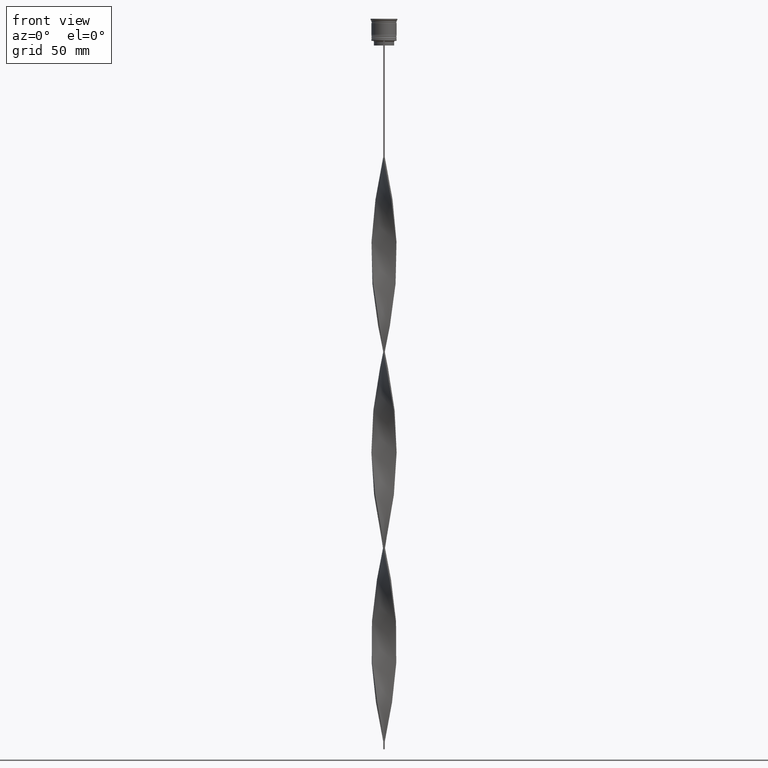
[diagram: clean part render]
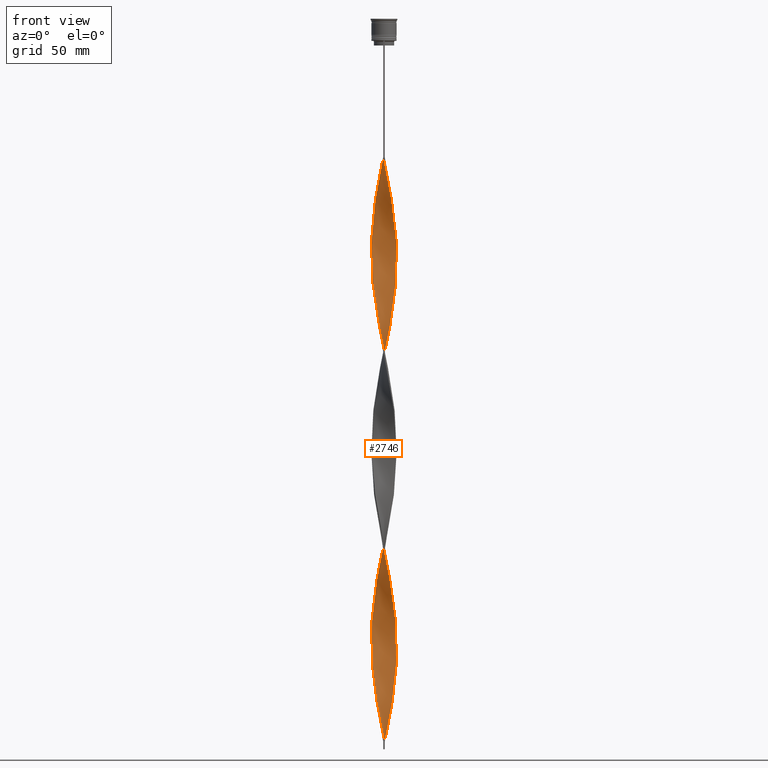
[diagram: same view with one face highlighted and labeled with its STEP entity id]
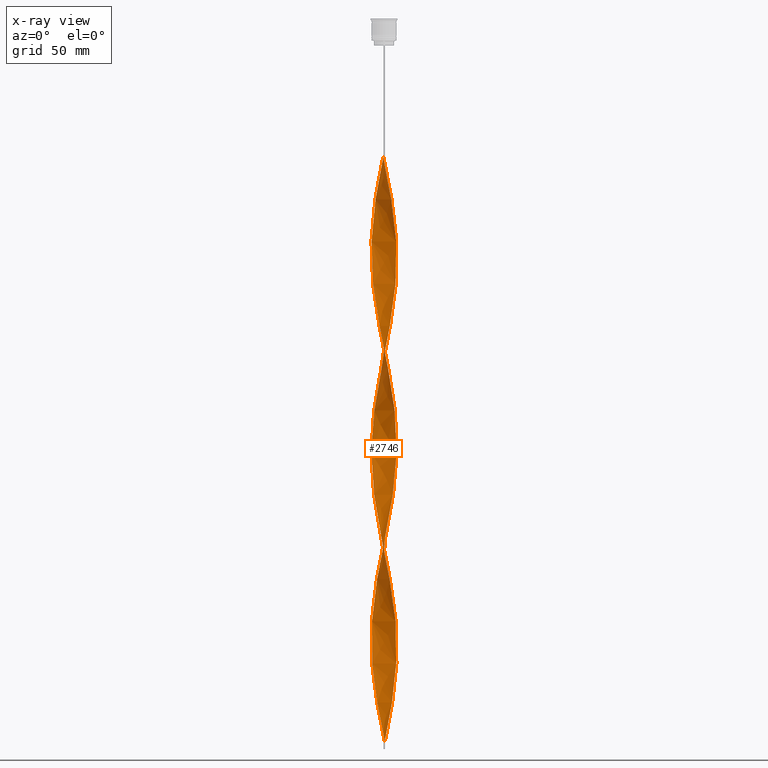
[diagram: x-ray of the same camera — body ghosted, the highlighted face saturated]
A machine part, front view. The second image highlights one B-rep face of the part: STEP entity #2746.
The next image is the same camera in x-ray: the body ghosted, the highlighted face saturated — about 0% of this face is hidden behind the body in this view.
In plain terms, the highlighted face is a freeform B-spline surface patch.
Its self-contained STEP definition (entity closure, byte-faithful):
#10 = CARTESIAN_POINT ( 'NONE',  ( -7.333114266084574950, 3.236577692648028748, -131.0144927536231876 ) ) ;
#13 = CARTESIAN_POINT ( 'NONE',  ( -3.157528285648546706, 7.387870401962427280, -101.4420289855072497 ) ) ;
#20 = CARTESIAN_POINT ( 'NONE',  ( 5.839456248204610844, 5.518275516514861145, -182.0942028985507477 ) ) ;
#30 = CARTESIAN_POINT ( 'NONE',  ( -3.645814369522663245, -7.138489867120505039, -319.2028985507245693 ) ) ;
#33 = CARTESIAN_POINT ( 'NONE',  ( -1.047214991364636028, 7.965799063039706418, -90.68840579710145278 ) ) ;
#37 = CARTESIAN_POINT ( 'NONE',  ( -7.705527183036052996, 2.207906436308479492, -136.3913043478260931 ) ) ;
#38 = CARTESIAN_POINT ( 'NONE',  ( 3.729461898010225873, -7.095147211389628339, -109.5072463768115796 ) ) ;
#41 = CARTESIAN_POINT ( 'NONE',  ( -1.140765448138979510, 7.952940848717255484, -219.7318840579710297 ) ) ;
#51 = CARTESIAN_POINT ( 'NONE',  ( 3.645814369522662357, 7.138489867120505039, -442.8695652173913118 ) ) ;
#53 = CARTESIAN_POINT ( 'NONE',  ( 4.660847909256212951, 6.521234297798380375, -308.4492753623188150 ) ) ;
#55 = CARTESIAN_POINT ( 'NONE',  ( -0.04721499136463834512, -8.034200936960287365, -208.9782608695652186 ) ) ;
#60 = CARTESIAN_POINT ( 'NONE',  ( 6.187964285834324230, 5.095007163610171474, -179.4057971014492807 ) ) ;
#70 = CARTESIAN_POINT ( 'NONE',  ( 7.856552120720868615, 1.680833937442848480, -407.9202898550724399 ) ) ;
#72 = CARTESIAN_POINT ( 'NONE',  ( -8.012249295248929926, 0.5953781837169687119, -391.7898550724637516 ) ) ;
#75 = CARTESIAN_POINT ( 'NONE',  ( 6.824099305140966187, -4.204957630413714398, -249.3043478260869392 ) ) ;
#95 = CARTESIAN_POINT ( 'NONE',  ( -6.824099305140974181, -4.204957630413716174, -297.6956521739130039 ) ) ;
#97 = CARTESIAN_POINT ( 'NONE',  ( 8.018693425164364896, 0.5011683390727713627, -273.4999999999999432 ) ) ;
#100 = CARTESIAN_POINT ( 'NONE',  ( 5.505411142615667330, 5.825843127888289175, -303.0724637681159379 ) ) ;
#110 = VERTEX_POINT ( 'NONE', #2483 ) ;
#117 = CARTESIAN_POINT ( 'NONE',  ( 5.505411142615667330, -5.825843127888297168, -367.5942028985506909 ) ) ;
#119 = CARTESIAN_POINT ( 'NONE',  ( 5.839456248204604627, -5.518275516514857593, -241.2391304347826519 ) ) ;
#122 = CARTESIAN_POINT ( 'NONE',  ( 3.244140533008804006, 7.350249393928921293, -316.5144927536231876 ) ) ;
#124 = CARTESIAN_POINT ( 'NONE',  ( 1.047214991364638914, 7.965799063039713523, -456.3115942028985614 ) ) ;
#125 = CARTESIAN_POINT ( 'NONE',  ( -1.140765448138979732, 7.952940848717254596, -219.7318840579710297 ) ) ;
#134 = CARTESIAN_POINT ( 'NONE',  ( -0.4999999999999998890, -8.000000000000003553, -88.00000000000000000 ) ) ;
#138 = CARTESIAN_POINT ( 'NONE',  ( -7.333114266084574950, 3.236577692648028748, -378.3478260869565020 ) ) ;
#140 = CARTESIAN_POINT ( 'NONE',  ( -1.676915525582294064, -7.838236684360903261, -200.9130434782608745 ) ) ;
#141 = CARTESIAN_POINT ( 'NONE',  ( -2.213065603025611949, 7.723532520004569690, -225.1086956521739353 ) ) ;
#143 = CARTESIAN_POINT ( 'NONE',  ( -4.214783263011650405, 6.840045028850329167, -235.8623188405797464 ) ) ;
#155 = LINE ( 'NONE', #134, #3720 ) ;
#162 = CARTESIAN_POINT ( 'NONE',  ( -4.214783263011646852, -6.840045028850322062, -434.8043478260869961 ) ) ;
#166 = CARTESIAN_POINT ( 'NONE',  ( -5.106912555500773720, -6.202423566746443129, -429.4275362318840621 ) ) ;
#168 = CARTESIAN_POINT ( 'NONE',  ( 7.111726286817910747, 3.738176450121950101, -171.3405797101449366 ) ) ;
#170 = CARTESIAN_POINT ( 'NONE',  ( 4.134100453396771790, 6.889109332278581022, -192.8478260869565020 ) ) ;
#190 = CARTESIAN_POINT ( 'NONE',  ( -7.705527183036052996, 2.207906436308479492, -383.7246376811593791 ) ) ;
#191 = CARTESIAN_POINT ( 'NONE',  ( -4.134100453396776231, -6.889109332278578357, -316.5144927536232444 ) ) ;
#194 = CARTESIAN_POINT ( 'NONE',  ( 7.586124921344943317, -2.646001252571963835, -139.0797101449275317 ) ) ;
#209 = CARTESIAN_POINT ( 'NONE',  ( -7.730944694932262884, -2.117190148262229510, -405.2318840579709445 ) ) ;
#210 = CARTESIAN_POINT ( 'NONE',  ( 0.04721499136463627733, -8.034200936960292694, -338.0217391304347530 ) ) ;
#226 = CARTESIAN_POINT ( 'NONE',  ( -0.04721499136463833818, -8.034200936960285588, -456.3115942028985614 ) ) ;
#228 = CARTESIAN_POINT ( 'NONE',  ( -6.536472323464030509, 4.671738810705480915, -370.2826086956521863 ) ) ;
#229 = CARTESIAN_POINT ( 'NONE',  ( 4.660847909256214727, -6.521234297798388369, -362.2173913043478137 ) ) ;
#250 = CARTESIAN_POINT ( 'NONE',  ( -3.729461898010225429, -7.095147211389621233, -437.4927536231883778 ) ) ;
#252 = CARTESIAN_POINT ( 'NONE',  ( -7.333114266084582944, -3.236577692648026527, -292.3188405797101268 ) ) ;
#269 = CARTESIAN_POINT ( 'NONE',  ( 4.583881302556708448, -6.575563261354191447, -233.1739130434782510 ) ) ;
#287 = CARTESIAN_POINT ( 'NONE',  ( -5.106912555500773720, -6.202423566746443129, -182.0942028985507477 ) ) ;
#313 = CARTESIAN_POINT ( 'NONE',  ( 0.4999999999999989453, -7.999999999999996447, -211.6666666666666572 ) ) ;
#318 = CARTESIAN_POINT ( 'NONE',  ( -7.111726286817905418, 3.738176450121948768, -128.3260869565217206 ) ) ;
#330 = CARTESIAN_POINT ( 'NONE',  ( -8.018693425164364896, -0.5011683390727723619, -149.8333333333332860 ) ) ;
#338 = CARTESIAN_POINT ( 'NONE',  ( 8.018693425164372002, -0.5011683390727734722, -149.8333333333332860 ) ) ;
#347 = CARTESIAN_POINT ( 'NONE',  ( -8.012249295248937031, -0.5953781837169641600, -278.8768115942028771 ) ) ;
#349 = CARTESIAN_POINT ( 'NONE',  ( 4.134100453396771790, 6.889109332278581910, -440.1811594202897595 ) ) ;
#351 = CARTESIAN_POINT ( 'NONE',  ( -7.947228946841973674, -1.044773691512636438, -152.5217391304347530 ) ) ;
#357 = CARTESIAN_POINT ( 'NONE',  ( 1.047214991364638914, 7.965799063039713523, -208.9782608695651902 ) ) ;
#368 = VERTEX_POINT ( 'NONE', #2660 ) ;
#370 = CARTESIAN_POINT ( 'NONE',  ( -5.436559199960636413, -5.890146353472333729, -308.4492753623188150 ) ) ;
#373 = CARTESIAN_POINT ( 'NONE',  ( 7.947228946841973674, 1.044773691512637104, -276.1884057971014386 ) ) ;
#374 = CARTESIAN_POINT ( 'NONE',  ( 6.873049228353425910, 4.124462911050398972, -292.3188405797101268 ) ) ;
#376 = CARTESIAN_POINT ( 'NONE',  ( 1.676915525582295841, -7.838236684360910367, -98.75362318840578268 ) ) ;
#379 = CARTESIAN_POINT ( 'NONE',  ( -7.586124921344943317, 2.646001252571963391, -262.7463768115941889 ) ) ;
#389 = CARTESIAN_POINT ( 'NONE',  ( -7.856552120720868615, -1.680833937442847592, -284.2536231884058111 ) ) ;
#391 = CARTESIAN_POINT ( 'NONE',  ( -7.934400707984895718, 1.138106060579909817, -389.1014492753622562 ) ) ;
#392 = CARTESIAN_POINT ( 'NONE',  ( 2.213065603025612393, 7.723532520004561697, -321.8913043478260647 ) ) ;
#408 = CARTESIAN_POINT ( 'NONE',  ( 1.140765448138979510, -7.952940848717254596, -343.3985507246376869 ) ) ;
#410 = CARTESIAN_POINT ( 'NONE',  ( -0.4999999999999998890, 7.999999999999996447, -335.3333333333333144 ) ) ;
#412 = CARTESIAN_POINT ( 'NONE',  ( 8.015471360206644746, -0.04710492232210114483, -270.8115942028985614 ) ) ;
#416 = CARTESIAN_POINT ( 'NONE',  ( 0.04721499136463628427, -8.034200936960294470, -90.68840579710145278 ) ) ;
#435 = CARTESIAN_POINT ( 'NONE',  ( -7.705527183036060102, -2.207906436308479936, -286.9420289855072497 ) ) ;
#437 = CARTESIAN_POINT ( 'NONE',  ( -5.436559199960629307, 5.890146353472331064, -362.2173913043478137 ) ) ;
#442 = CARTESIAN_POINT ( 'NONE',  ( 7.155170220385199897, 3.654333464282636612, -289.6304347826086882 ) ) ;
#444 = CARTESIAN_POINT ( 'NONE',  ( 7.705527183036060102, 2.207906436308480380, -163.2753623188405641 ) ) ;
#460 = CARTESIAN_POINT ( 'NONE',  ( 0.04721499136463920554, 8.034200936960285588, -332.6449275362318758 ) ) ;
#462 =( BOUNDED_CURVE ( )  B_SPLINE_CURVE ( 2, ( #1603, #4033, #3660, #2617, #979, #13, #2311, #2679, #2697, #2291, #2375, #646, #4014, #667, #1979, #318, #3614, #687, #37, #2018, #1363, #3696, #1930, #3344, #351, #1683, #3022, #1085, #3128, #4123, #1127, #3434, #4146, #2102, #2062, #1105, #2458, #2419, #3043, #3721, #1728, #2740, #140, #3787, #3457, #55, #2785, #2484, #1750, #2041, #1429, #799, #3387, #1471, #2806, #1153, #4101, #2125, #3759, #3740, #75, #2436, #751, #463, #1792, #1707, #2717, #772, #412, #2764, #709, #1383, #3087, #4055, #3367, #442, #374, #1774, #1059, #4081, #100, #3109, #2081, #2396, #3409, #122, #733, #392, #3061, #1404, #1448, #3812, #534, #1813, #1904, #2566, #3550, #3151, #909, #4234, #553, #3215, #3476, #2549, #2896, #228, #2146, #890, #1864, #1561, #190, #509, #4210, #2198, #1174, #823, #3531, #3193, #209, #3836, #2218, #2168, #1885, #3881, #2851, #845, #484, #166, #3234, #1235, #250, #1537, #2870, #3502, #1840, #3174, #1496, #2915, #2831 ),
 .UNSPECIFIED., .F., .T. ) 
 B_SPLINE_CURVE_WITH_KNOTS ( ( 3, 2, 2, 2, 2, 2, 2, 2, 2, 2, 2, 2, 2, 2, 2, 2, 2, 2, 2, 2, 2, 2, 2, 2, 2, 2, 2, 2, 2, 2, 2, 2, 2, 2, 2, 2, 2, 2, 2, 2, 2, 2, 2, 2, 2, 2, 2, 2, 2, 2, 2, 2, 2, 2, 2, 2, 2, 2, 2, 2, 2, 2, 2, 2, 2, 2, 2, 2, 2, 3 ),
 ( 0.000000000000000000, 0.01086956521739130405, 0.02173913043478260809, 0.03260869565217391214, 0.04347826086956521618, 0.05434782608695652023, 0.06521739130434782428, 0.07608695652173913526, 0.08695652173913043237, 0.09782608695652174335, 0.1086956521739130405, 0.1195652173913043653, 0.1304347826086956486, 0.1413043478260869457, 0.1521739130434782705, 0.1630434782608695676, 0.1739130434782608647, 0.1847826086956521896, 0.1956521739130434867, 0.2065217391304347838, 0.2173913043478260809, 0.2282608695652173780, 0.2391304347826087306, 0.2500000000000000000, 0.2608695652173912971, 0.2717391304347825942, 0.2826086956521738913, 0.2934782608695652439, 0.3043478260869565410, 0.3152173913043478382, 0.3260869565217391353, 0.3369565217391304324, 0.3478260869565217295, 0.3586956521739130266, 0.3695652173913043792, 0.3804347826086956208, 0.3913043478260869734, 0.4021739130434782705, 0.4130434782608695676, 0.4239130434782609202, 0.4347826086956521618, 0.4456521739130434590, 0.4565217391304347561, 0.4673913043478261087, 0.4782608695652174613, 0.4891304347826087029, 0.5000000000000000000, 0.5108695652173913526, 0.5217391304347825942, 0.5326086956521739468, 0.5434782608695651884, 0.5543478260869565410, 0.5652173913043477826, 0.5760869565217391353, 0.5869565217391304879, 0.5978260869565217295, 0.6086956521739130821, 0.6195652173913043237, 0.6304347826086956763, 0.6413043478260869179, 0.6521739130434782705, 0.6630434782608695121, 0.6739130434782608647, 0.6847826086956522174, 0.6956521739130434590, 0.7065217391304349226, 0.7173913043478260532, 0.7282608695652174058, 0.7391304347826087584, 0.7500000000000000000 ),
 .UNSPECIFIED. ) 
 CURVE ( )  GEOMETRIC_REPRESENTATION_ITEM ( )  RATIONAL_B_SPLINE_CURVE ( ( 1.000000000000000000, 0.9976687691905391508, 1.000000000000000000, 0.9976687691905391508, 1.000000000000000000, 0.9976687691905391508, 1.000000000000000000, 0.9976687691905391508, 1.000000000000000000, 0.9976687691905391508, 1.000000000000000000, 0.9976687691905391508, 1.000000000000000000, 0.9976687691905391508, 1.000000000000000000, 0.9976687691905391508, 1.000000000000000000, 0.9976687691905391508, 1.000000000000000000, 0.9976687691905391508, 1.000000000000000000, 0.9976687691905391508, 1.000000000000000000, 0.9976687691905391508, 1.000000000000000000, 0.9976687691905391508, 1.000000000000000000, 0.9976687691905391508, 1.000000000000000000, 0.9976687691905391508, 1.000000000000000000, 0.9976687691905391508, 1.000000000000000000, 0.9976687691905391508, 1.000000000000000000, 0.9976687691905391508, 1.000000000000000000, 0.9976687691905391508, 1.000000000000000000, 0.9976687691905391508, 1.000000000000000000, 0.9976687691905391508, 1.000000000000000000, 0.9976687691905391508, 1.000000000000000000, 0.9976687691905391508, 1.000000000000000000, 0.9976687691905391508, 1.000000000000000000, 0.9976687691905391508, 1.000000000000000000, 0.9976687691905391508, 1.000000000000000000, 0.9976687691905391508, 1.000000000000000000, 0.9976687691905391508, 1.000000000000000000, 0.9976687691905391508, 1.000000000000000000, 0.9976687691905391508, 1.000000000000000000, 0.9976687691905391508, 1.000000000000000000, 0.9976687691905391508, 1.000000000000000000, 0.9976687691905391508, 1.000000000000000000, 0.9976687691905391508, 1.000000000000000000, 0.9976687691905391508, 1.000000000000000000, 0.9976687691905391508, 1.000000000000000000, 0.9976687691905391508, 1.000000000000000000, 0.9976687691905391508, 1.000000000000000000, 0.9976687691905391508, 1.000000000000000000, 0.9976687691905391508, 1.000000000000000000, 0.9976687691905391508, 1.000000000000000000, 0.9976687691905391508, 1.000000000000000000, 0.9976687691905391508, 1.000000000000000000, 0.9976687691905391508, 1.000000000000000000, 0.9976687691905391508, 1.000000000000000000, 0.9976687691905391508, 1.000000000000000000, 0.9976687691905391508, 1.000000000000000000, 0.9976687691905391508, 1.000000000000000000, 0.9976687691905391508, 1.000000000000000000, 0.9976687691905391508, 1.000000000000000000, 0.9976687691905391508, 1.000000000000000000, 0.9976687691905391508, 1.000000000000000000, 0.9976687691905391508, 1.000000000000000000, 0.9976687691905391508, 1.000000000000000000, 0.9976687691905391508, 1.000000000000000000, 0.9976687691905391508, 1.000000000000000000, 0.9976687691905391508, 1.000000000000000000, 0.9976687691905391508, 1.000000000000000000, 0.9976687691905391508, 1.000000000000000000, 0.9976687691905391508, 1.000000000000000000, 0.9976687691905391508, 1.000000000000000000, 0.9976687691905391508, 1.000000000000000000, 0.9976687691905391508, 1.000000000000000000, 0.9976687691905391508, 1.000000000000000000, 0.9976687691905391508, 1.000000000000000000, 0.9976687691905391508, 1.000000000000000000, 0.9976687691905391508, 1.000000000000000000, 0.9976687691905391508, 1.000000000000000000, 0.9976687691905391508, 1.000000000000000000 ) ) 
 REPRESENTATION_ITEM ( '' )  );
#463 = CARTESIAN_POINT ( 'NONE',  ( 7.554502245351245371, -2.734978935174111836, -257.3695652173913118 ) ) ;
#464 = CARTESIAN_POINT ( 'NONE',  ( 4.134100453396771790, 6.889109332278581910, -192.8478260869565020 ) ) ;
#466 = CARTESIAN_POINT ( 'NONE',  ( -6.590928236321652811, 4.594592357818173767, -251.9927536231884631 ) ) ;
#484 = CARTESIAN_POINT ( 'NONE',  ( -5.505411142615663778, -5.825843127888290951, -426.7391304347826235 ) ) ;
#486 = CARTESIAN_POINT ( 'NONE',  ( 6.536472323464036727, 4.671738810705485356, -176.7173913043478137 ) ) ;
#489 = CARTESIAN_POINT ( 'NONE',  ( -7.730944694932269989, 2.117190148262231286, -265.4347826086956275 ) ) ;
#506 = CARTESIAN_POINT ( 'NONE',  ( -3.729461898010225429, -7.095147211389621233, -437.4927536231883778 ) ) ;
#509 = CARTESIAN_POINT ( 'NONE',  ( -7.856552120720863286, 1.680833937442849368, -386.4130434782609314 ) ) ;
#510 = CARTESIAN_POINT ( 'NONE',  ( 7.934400707984902823, 1.138106060579908485, -405.2318840579709445 ) ) ;
#512 = CARTESIAN_POINT ( 'NONE',  ( -0.4999999999999998890, 7.999999999999996447, -88.00000000000000000 ) ) ;
#514 = CARTESIAN_POINT ( 'NONE',  ( 8.015471360206651852, 0.04710492232209777946, -152.5217391304347530 ) ) ;
#518 = CARTESIAN_POINT ( 'NONE',  ( 0.5000000000000008882, 8.000000000000003553, -458.9999999999999432 ) ) ;
#534 = CARTESIAN_POINT ( 'NONE',  ( -0.4999999999999998890, 7.999999999999996447, -335.3333333333333144 ) ) ;
#535 = CARTESIAN_POINT ( 'NONE',  ( 2.213065603025611949, -7.723532520004569690, -348.7753623188405072 ) ) ;
#550 = CARTESIAN_POINT ( 'NONE',  ( -7.586124921344937988, -2.646001252571960283, -407.9202898550724399 ) ) ;
#553 = CARTESIAN_POINT ( 'NONE',  ( -4.583881302556711113, 6.575563261354189670, -356.8405797101449366 ) ) ;
#555 = CARTESIAN_POINT ( 'NONE',  ( -3.157528285648551147, -7.387870401962433498, -321.8913043478260647 ) ) ;
#572 = EDGE_LOOP ( 'NONE', ( #4238, #1033, #3467, #1602 ) ) ;
#577 = CARTESIAN_POINT ( 'NONE',  ( -7.554502245351254253, -2.734978935174111836, -289.6304347826086882 ) ) ;
#599 = CARTESIAN_POINT ( 'NONE',  ( -6.824099305140974181, -4.204957630413716174, -297.6956521739130039 ) ) ;
#621 = CARTESIAN_POINT ( 'NONE',  ( -7.730944694932262884, -2.117190148262229510, -157.8985507246376585 ) ) ;
#640 = CARTESIAN_POINT ( 'NONE',  ( -6.873049228353423246, -4.124462911050403413, -168.6521739130434696 ) ) ;
#646 = CARTESIAN_POINT ( 'NONE',  ( -5.839456248204605515, 5.518275516514856704, -117.5724637681159521 ) ) ;
#664 = CARTESIAN_POINT ( 'NONE',  ( -4.134100453396768238, 6.889109332278574804, -106.8188405797101268 ) ) ;
#667 = CARTESIAN_POINT ( 'NONE',  ( -6.536472323464030509, 4.671738810705480915, -122.9492753623188577 ) ) ;
#673 = CARTESIAN_POINT ( 'NONE',  ( 5.903909729730560052, -5.449262689030147655, -122.9492753623188577 ) ) ;
#681 = CARTESIAN_POINT ( 'NONE',  ( 4.134100453396771790, 6.889109332278581022, -440.1811594202898164 ) ) ;
#683 = CARTESIAN_POINT ( 'NONE',  ( -7.155170220385199897, -3.654333464282636612, -165.9637681159420595 ) ) ;
#687 = CARTESIAN_POINT ( 'NONE',  ( -7.554502245351246259, 2.734978935174109616, -133.7028985507246546 ) ) ;
#689 = CARTESIAN_POINT ( 'NONE',  ( -0.4999999999999998890, -8.000000000000003553, -88.00000000000000000 ) ) ;
#694 = CARTESIAN_POINT ( 'NONE',  ( 2.639832812930094530, 7.568439913203885538, -200.9130434782608745 ) ) ;
#704 = CARTESIAN_POINT ( 'NONE',  ( -2.639832812930095418, -7.568439913203885538, -324.5797101449275033 ) ) ;
#707 = CARTESIAN_POINT ( 'NONE',  ( 3.645814369522654363, -7.138489867120501486, -227.7971014492753454 ) ) ;
#709 = CARTESIAN_POINT ( 'NONE',  ( 7.947228946841973674, 1.044773691512637104, -276.1884057971014386 ) ) ;
#717 = CARTESIAN_POINT ( 'NONE',  ( -3.244140533008800897, 7.350249393928931951, -230.4855072463767840 ) ) ;
#728 = CARTESIAN_POINT ( 'NONE',  ( -3.157528285648551147, -7.387870401962433498, -321.8913043478260647 ) ) ;
#732 = CARTESIAN_POINT ( 'NONE',  ( -7.705527183036052996, 2.207906436308479492, -383.7246376811593791 ) ) ;
#733 = CARTESIAN_POINT ( 'NONE',  ( 2.728603068017207534, 7.536890956966740163, -319.2028985507245693 ) ) ;
#747 = CARTESIAN_POINT ( 'NONE',  ( -1.584676165788143409, -7.857404243742526440, -329.9565217391304373 ) ) ;
#749 = CARTESIAN_POINT ( 'NONE',  ( 7.111726286817904530, -3.738176450121948324, -251.9927536231884915 ) ) ;
#751 = CARTESIAN_POINT ( 'NONE',  ( 7.333114266084573174, -3.236577692648032745, -254.6811594202898448 ) ) ;
#764 = EDGE_CURVE ( 'NONE', #2026, #368, #2771, .T. ) ;
#765 = CARTESIAN_POINT ( 'NONE',  ( -6.187964285834326006, -5.095007163610167922, -303.0724637681159379 ) ) ;
#767 = CARTESIAN_POINT ( 'NONE',  ( -7.875764468519589556, -1.588379043952500291, -402.5434782608696196 ) ) ;
#772 = CARTESIAN_POINT ( 'NONE',  ( 8.012249295248929926, -0.5953781837169733748, -268.1231884057971229 ) ) ;
#775 = CARTESIAN_POINT ( 'NONE',  ( -0.5939902197518064364, 7.993570892838771869, -217.0434782608695627 ) ) ;
#795 = CARTESIAN_POINT ( 'NONE',  ( 7.730944694932264660, 2.117190148262227289, -281.5652173913043725 ) ) ;
#799 = CARTESIAN_POINT ( 'NONE',  ( 3.157528285648546706, -7.387870401962427280, -225.1086956521739353 ) ) ;
#801 = CARTESIAN_POINT ( 'NONE',  ( 7.875764468519596662, -1.588379043952502512, -144.4565217391304657 ) ) ;
#803 = CARTESIAN_POINT ( 'NONE',  ( 0.5000000000000008882, 8.000000000000003553, -458.9999999999999432 ) ) ;
#804 = CARTESIAN_POINT ( 'NONE',  ( 8.018693425164370225, -0.5011683390727733611, -149.8333333333333144 ) ) ;
#821 = CARTESIAN_POINT ( 'NONE',  ( 8.015471360206644746, -0.04710492232210114483, -270.8115942028985614 ) ) ;
#823 = CARTESIAN_POINT ( 'NONE',  ( -8.018693425164364896, -0.5011683390727723619, -397.1666666666666856 ) ) ;
#824 = CARTESIAN_POINT ( 'NONE',  ( -1.676915525582294064, 7.838236684360910367, -222.4202898550724399 ) ) ;
#827 = CARTESIAN_POINT ( 'NONE',  ( -4.660847909256214727, 6.521234297798387480, -238.5507246376811565 ) ) ;
#841 = CARTESIAN_POINT ( 'NONE',  ( -6.873049228353423246, -4.124462911050403413, -415.9855072463768124 ) ) ;
#845 = CARTESIAN_POINT ( 'NONE',  ( -5.903909729730553835, -5.449262689030142326, -424.0507246376811281 ) ) ;
#846 = CARTESIAN_POINT ( 'NONE',  ( -8.012249295248937031, -0.5953781837169641600, -278.8768115942028203 ) ) ;
#849 = CARTESIAN_POINT ( 'NONE',  ( 4.583881302556717330, 6.575563261354193223, -190.1594202898550634 ) ) ;
#874 = CARTESIAN_POINT ( 'NONE',  ( 5.436559199960635524, 5.890146353472334617, -432.1159420289855007 ) ) ;
#890 = CARTESIAN_POINT ( 'NONE',  ( -7.111726286817905418, 3.738176450121948768, -375.6594202898551771 ) ) ;
#891 = CARTESIAN_POINT ( 'NONE',  ( 6.590928236321652811, -4.594592357818173767, -375.6594202898551771 ) ) ;
#905 = CARTESIAN_POINT ( 'NONE',  ( 0.4999999999999989453, -7.999999999999996447, -458.9999999999999432 ) ) ;
#908 =( BOUNDED_CURVE ( )  B_SPLINE_CURVE ( 2, ( #689, #416, #3063, #3346, #376, #2767, #1003, #1043, #38, #1366, #2336, #3698, #1709, #3045, #2719, #1521, #4103, #4150, #2106, #194, #2173, #1844, #4192, #804, #514, #1108, #1157, #3479, #444, #3437, #3762, #3178, #1776, #3816, #2439, #1179, #4171, #1500, #849, #170, #2855, #2129, #2510, #2835, #3840, #3112, #1197, #3508, #775, #125, #2463, #1130, #1451, #3792, #2489, #143, #827, #2789, #4126, #1796, #3460, #466, #2150, #1474, #3132, #2811, #489, #1817, #3156, #1769, #3015, #347, #2015, #389, #435, #2734, #3039, #1081, #95, #3736, #765, #3693, #370, #1424, #1676, #2780, #30, #728, #704, #2095, #747, #1360, #3339, #4096, #3427, #408, #2693, #4049, #2076, #1055, #1378, #1701, #1399, #3381, #117, #2391, #2370, #3105, #1724, #2713, #3056, #4028, #4076, #1038, #2414, #3405, #1443, #3715, #2058, #70, #1744, #1100, #3360, #4119, #1122, #3081, #2757, #3673, #3755, #2432, #2034, #681, #51, #3478, #1499, #3815, #2172, #124, #803 ),
 .UNSPECIFIED., .F., .T. ) 
 B_SPLINE_CURVE_WITH_KNOTS ( ( 3, 2, 2, 2, 2, 2, 2, 2, 2, 2, 2, 2, 2, 2, 2, 2, 2, 2, 2, 2, 2, 2, 2, 2, 2, 2, 2, 2, 2, 2, 2, 2, 2, 2, 2, 2, 2, 2, 2, 2, 2, 2, 2, 2, 2, 2, 2, 2, 2, 2, 2, 2, 2, 2, 2, 2, 2, 2, 2, 2, 2, 2, 2, 2, 2, 2, 2, 2, 2, 3 ),
 ( 0.000000000000000000, 0.01086956521739130405, 0.02173913043478260809, 0.03260869565217391214, 0.04347826086956521618, 0.05434782608695652023, 0.06521739130434782428, 0.07608695652173913526, 0.08695652173913043237, 0.09782608695652174335, 0.1086956521739130405, 0.1195652173913043653, 0.1304347826086956486, 0.1413043478260869457, 0.1521739130434782705, 0.1630434782608695676, 0.1739130434782608647, 0.1847826086956521896, 0.1956521739130434867, 0.2065217391304347838, 0.2173913043478260809, 0.2282608695652173780, 0.2391304347826087306, 0.2500000000000000000, 0.2608695652173912971, 0.2717391304347825942, 0.2826086956521738913, 0.2934782608695652439, 0.3043478260869565410, 0.3152173913043478382, 0.3260869565217391353, 0.3369565217391304324, 0.3478260869565217295, 0.3586956521739130266, 0.3695652173913043792, 0.3804347826086956208, 0.3913043478260869734, 0.4021739130434782705, 0.4130434782608695676, 0.4239130434782609202, 0.4347826086956521618, 0.4456521739130434590, 0.4565217391304347561, 0.4673913043478261087, 0.4782608695652174613, 0.4891304347826087029, 0.5000000000000000000, 0.5108695652173913526, 0.5217391304347825942, 0.5326086956521739468, 0.5434782608695651884, 0.5543478260869565410, 0.5652173913043477826, 0.5760869565217391353, 0.5869565217391304879, 0.5978260869565217295, 0.6086956521739130821, 0.6195652173913043237, 0.6304347826086956763, 0.6413043478260869179, 0.6521739130434782705, 0.6630434782608695121, 0.6739130434782608647, 0.6847826086956522174, 0.6956521739130434590, 0.7065217391304349226, 0.7173913043478260532, 0.7282608695652174058, 0.7391304347826087584, 0.7500000000000000000 ),
 .UNSPECIFIED. ) 
 CURVE ( )  GEOMETRIC_REPRESENTATION_ITEM ( )  RATIONAL_B_SPLINE_CURVE ( ( 1.000000000000000000, 0.9976687691905391508, 1.000000000000000000, 0.9976687691905391508, 1.000000000000000000, 0.9976687691905391508, 1.000000000000000000, 0.9976687691905391508, 1.000000000000000000, 0.9976687691905391508, 1.000000000000000000, 0.9976687691905391508, 1.000000000000000000, 0.9976687691905391508, 1.000000000000000000, 0.9976687691905391508, 1.000000000000000000, 0.9976687691905391508, 1.000000000000000000, 0.9976687691905391508, 1.000000000000000000, 0.9976687691905391508, 1.000000000000000000, 0.9976687691905391508, 1.000000000000000000, 0.9976687691905391508, 1.000000000000000000, 0.9976687691905391508, 1.000000000000000000, 0.9976687691905391508, 1.000000000000000000, 0.9976687691905391508, 1.000000000000000000, 0.9976687691905391508, 1.000000000000000000, 0.9976687691905391508, 1.000000000000000000, 0.9976687691905391508, 1.000000000000000000, 0.9976687691905391508, 1.000000000000000000, 0.9976687691905391508, 1.000000000000000000, 0.9976687691905391508, 1.000000000000000000, 0.9976687691905391508, 1.000000000000000000, 0.9976687691905391508, 1.000000000000000000, 0.9976687691905391508, 1.000000000000000000, 0.9976687691905391508, 1.000000000000000000, 0.9976687691905391508, 1.000000000000000000, 0.9976687691905391508, 1.000000000000000000, 0.9976687691905391508, 1.000000000000000000, 0.9976687691905391508, 1.000000000000000000, 0.9976687691905391508, 1.000000000000000000, 0.9976687691905391508, 1.000000000000000000, 0.9976687691905391508, 1.000000000000000000, 0.9976687691905391508, 1.000000000000000000, 0.9976687691905391508, 1.000000000000000000, 0.9976687691905391508, 1.000000000000000000, 0.9976687691905391508, 1.000000000000000000, 0.9976687691905391508, 1.000000000000000000, 0.9976687691905391508, 1.000000000000000000, 0.9976687691905391508, 1.000000000000000000, 0.9976687691905391508, 1.000000000000000000, 0.9976687691905391508, 1.000000000000000000, 0.9976687691905391508, 1.000000000000000000, 0.9976687691905391508, 1.000000000000000000, 0.9976687691905391508, 1.000000000000000000, 0.9976687691905391508, 1.000000000000000000, 0.9976687691905391508, 1.000000000000000000, 0.9976687691905391508, 1.000000000000000000, 0.9976687691905391508, 1.000000000000000000, 0.9976687691905391508, 1.000000000000000000, 0.9976687691905391508, 1.000000000000000000, 0.9976687691905391508, 1.000000000000000000, 0.9976687691905391508, 1.000000000000000000, 0.9976687691905391508, 1.000000000000000000, 0.9976687691905391508, 1.000000000000000000, 0.9976687691905391508, 1.000000000000000000, 0.9976687691905391508, 1.000000000000000000, 0.9976687691905391508, 1.000000000000000000, 0.9976687691905391508, 1.000000000000000000, 0.9976687691905391508, 1.000000000000000000, 0.9976687691905391508, 1.000000000000000000, 0.9976687691905391508, 1.000000000000000000, 0.9976687691905391508, 1.000000000000000000, 0.9976687691905391508, 1.000000000000000000, 0.9976687691905391508, 1.000000000000000000, 0.9976687691905391508, 1.000000000000000000, 0.9976687691905391508, 1.000000000000000000, 0.9976687691905391508, 1.000000000000000000, 0.9976687691905391508, 1.000000000000000000 ) ) 
 REPRESENTATION_ITEM ( '' )  );
#909 = CARTESIAN_POINT ( 'NONE',  ( -3.645814369522656584, 7.138489867120500598, -351.4637681159420595 ) ) ;
#910 = CARTESIAN_POINT ( 'NONE',  ( 7.947228946841980779, -1.044773691512637548, -394.4782608695651902 ) ) ;
#930 = CARTESIAN_POINT ( 'NONE',  ( 7.586124921344943317, -2.646001252571964280, -386.4130434782609882 ) ) ;
#955 = CARTESIAN_POINT ( 'NONE',  ( -4.583881302556711113, 6.575563261354189670, -109.5072463768115796 ) ) ;
#974 = CARTESIAN_POINT ( 'NONE',  ( -2.122137340211640577, 7.749009424445332250, -96.06521739130434412 ) ) ;
#979 = CARTESIAN_POINT ( 'NONE',  ( -2.639832812930093198, 7.568439913203879321, -98.75362318840578268 ) ) ;
#994 = CARTESIAN_POINT ( 'NONE',  ( -4.660847909256212063, -6.521234297798381263, -184.7826086956521578 ) ) ;
#1003 = CARTESIAN_POINT ( 'NONE',  ( 2.728603068017206645, -7.536890956966748156, -104.1304347826086882 ) ) ;
#1008 = CARTESIAN_POINT ( 'NONE',  ( 3.157528285648550259, 7.387870401962433498, -198.2246376811594359 ) ) ;
#1018 = EDGE_CURVE ( 'NONE', #3342, #368, #462, .T. ) ;
#1020 = CARTESIAN_POINT ( 'NONE',  ( -7.705527183036052996, 2.207906436308479492, -136.3913043478260931 ) ) ;
#1029 = CARTESIAN_POINT ( 'NONE',  ( 6.247418983026105543, -5.021927523424159823, -125.6376811594202820 ) ) ;
#1033 = ORIENTED_EDGE ( 'NONE', *, *, #1018, .T. ) ;
#1038 = CARTESIAN_POINT ( 'NONE',  ( 7.875764468519596662, -1.588379043952502734, -391.7898550724637516 ) ) ;
#1041 = CARTESIAN_POINT ( 'NONE',  ( 3.157528285648546706, -7.387870401962427280, -225.1086956521739353 ) ) ;
#1043 = CARTESIAN_POINT ( 'NONE',  ( 3.244140533008801786, -7.350249393928931063, -106.8188405797101410 ) ) ;
#1046 = CARTESIAN_POINT ( 'NONE',  ( -5.505411142615667330, 5.825843127888297168, -243.9275362318840337 ) ) ;
#1055 = CARTESIAN_POINT ( 'NONE',  ( 3.244140533008801786, -7.350249393928931063, -354.1521739130434980 ) ) ;
#1057 = CARTESIAN_POINT ( 'NONE',  ( 6.187964285834317124, -5.095007163610168810, -243.9275362318840337 ) ) ;
#1059 = CARTESIAN_POINT ( 'NONE',  ( 6.247418983026101102, 5.021927523424155382, -297.6956521739130039 ) ) ;
#1066 = CARTESIAN_POINT ( 'NONE',  ( 1.140765448138979288, -7.952940848717255484, -96.06521739130434412 ) ) ;
#1081 = CARTESIAN_POINT ( 'NONE',  ( -7.111726286817911635, -3.738176450121949657, -295.0072463768116222 ) ) ;
#1083 = CARTESIAN_POINT ( 'NONE',  ( 7.333114266084573174, -3.236577692648032745, -254.6811594202898448 ) ) ;
#1085 = CARTESIAN_POINT ( 'NONE',  ( -7.586124921344937988, -2.646001252571960283, -160.5869565217391539 ) ) ;
#1100 = CARTESIAN_POINT ( 'NONE',  ( 7.554502245351253364, 2.734978935174110948, -413.2971014492753739 ) ) ;
#1102 = CARTESIAN_POINT ( 'NONE',  ( -8.015471360206644746, 0.04710492232209832070, -394.4782608695651902 ) ) ;
#1105 = CARTESIAN_POINT ( 'NONE',  ( -5.106912555500773720, -6.202423566746443129, -182.0942028985507477 ) ) ;
#1108 = CARTESIAN_POINT ( 'NONE',  ( 8.012249295248937031, 0.5953781837169684898, -155.2101449275362199 ) ) ;
#1122 = CARTESIAN_POINT ( 'NONE',  ( 6.824099305140973293, 4.204957630413717062, -421.3623188405797464 ) ) ;
#1124 = CARTESIAN_POINT ( 'NONE',  ( 8.012249295248929926, -0.5953781837169733748, -268.1231884057971797 ) ) ;
#1127 = CARTESIAN_POINT ( 'NONE',  ( -6.873049228353423246, -4.124462911050403413, -168.6521739130434696 ) ) ;
#1130 = CARTESIAN_POINT ( 'NONE',  ( -2.213065603025611949, 7.723532520004569690, -225.1086956521739353 ) ) ;
#1148 = CARTESIAN_POINT ( 'NONE',  ( 7.155170220385199897, 3.654333464282636612, -289.6304347826086882 ) ) ;
#1153 = CARTESIAN_POINT ( 'NONE',  ( 5.033662151716653099, -6.262017190429803648, -235.8623188405797464 ) ) ;
#1154 = CARTESIAN_POINT ( 'NONE',  ( 7.333114266084581168, 3.236577692648030968, -168.6521739130434696 ) ) ;
#1157 = CARTESIAN_POINT ( 'NONE',  ( 7.934400707984902823, 1.138106060579908485, -157.8985507246376585 ) ) ;
#1174 = CARTESIAN_POINT ( 'NONE',  ( -8.015471360206644746, 0.04710492232209832070, -394.4782608695651902 ) ) ;
#1176 = CARTESIAN_POINT ( 'NONE',  ( 6.824099305140973293, 4.204957630413717062, -421.3623188405797464 ) ) ;
#1179 = CARTESIAN_POINT ( 'NONE',  ( 5.839456248204609956, 5.518275516514862034, -182.0942028985507477 ) ) ;
#1195 = CARTESIAN_POINT ( 'NONE',  ( 5.839456248204610844, 5.518275516514861145, -429.4275362318841189 ) ) ;
#1197 = CARTESIAN_POINT ( 'NONE',  ( 0.5000000000000008882, 8.000000000000003553, -211.6666666666666572 ) ) ;
#1213 = CARTESIAN_POINT ( 'NONE',  ( -4.660847909256212063, -6.521234297798381263, -432.1159420289855007 ) ) ;
#1217 = CARTESIAN_POINT ( 'NONE',  ( -1.047214991364639802, -7.965799063039713523, -332.6449275362318758 ) ) ;
#1235 = CARTESIAN_POINT ( 'NONE',  ( -4.214783263011647740, -6.840045028850322950, -434.8043478260869392 ) ) ;
#1236 = CARTESIAN_POINT ( 'NONE',  ( -6.536472323464036727, -4.671738810705484468, -300.3840579710144993 ) ) ;
#1250 = CARTESIAN_POINT ( 'NONE',  ( -6.590928236321648370, -4.594592357818170214, -418.6739130434783078 ) ) ;
#1252 = CARTESIAN_POINT ( 'NONE',  ( 7.370647570865074272, -3.150167358427301334, -383.7246376811593791 ) ) ;
#1279 = CARTESIAN_POINT ( 'NONE',  ( -5.033662151716653987, 6.262017190429803648, -112.1956521739130466 ) ) ;
#1300 = CARTESIAN_POINT ( 'NONE',  ( -6.590928236321648370, -4.594592357818170214, -171.3405797101449366 ) ) ;
#1318 = CARTESIAN_POINT ( 'NONE',  ( -7.370647570865068055, -3.150167358427297781, -163.2753623188405641 ) ) ;
#1337 = CARTESIAN_POINT ( 'NONE',  ( -7.111726286817904530, 3.738176450121948324, -128.3260869565217206 ) ) ;
#1351 = CARTESIAN_POINT ( 'NONE',  ( 2.728603068017206645, -7.536890956966748156, -104.1304347826086882 ) ) ;
#1360 = CARTESIAN_POINT ( 'NONE',  ( -1.047214991364639802, -7.965799063039713523, -332.6449275362318758 ) ) ;
#1362 = CARTESIAN_POINT ( 'NONE',  ( 2.122137340211640577, -7.749009424445332250, -219.7318840579710297 ) ) ;
#1363 = CARTESIAN_POINT ( 'NONE',  ( -7.934400707984895718, 1.138106060579909817, -141.7681159420289703 ) ) ;
#1366 = CARTESIAN_POINT ( 'NONE',  ( 4.214783263011651293, -6.840045028850329167, -112.1956521739130466 ) ) ;
#1369 = CARTESIAN_POINT ( 'NONE',  ( -3.729461898010223209, 7.095147211389630115, -233.1739130434782510 ) ) ;
#1378 = CARTESIAN_POINT ( 'NONE',  ( 3.729461898010225873, -7.095147211389628339, -356.8405797101449366 ) ) ;
#1380 = CARTESIAN_POINT ( 'NONE',  ( -6.536472323464030509, 4.671738810705480915, -370.2826086956521863 ) ) ;
#1383 = CARTESIAN_POINT ( 'NONE',  ( 7.875764468519589556, 1.588379043952496072, -278.8768115942028771 ) ) ;
#1390 = CARTESIAN_POINT ( 'NONE',  ( -6.873049228353427686, 4.124462911050410518, -254.6811594202898448 ) ) ;
#1399 = CARTESIAN_POINT ( 'NONE',  ( 4.660847909256214727, -6.521234297798388369, -362.2173913043478137 ) ) ;
#1401 = CARTESIAN_POINT ( 'NONE',  ( -8.018693425164364896, -0.5011683390727723619, -397.1666666666666288 ) ) ;
#1404 = CARTESIAN_POINT ( 'NONE',  ( 1.140765448138977733, 7.952940848717247491, -327.2681159420290555 ) ) ;
#1424 = CARTESIAN_POINT ( 'NONE',  ( -5.033662151716660205, -6.262017190429808089, -311.1376811594203673 ) ) ;
#1427 = CARTESIAN_POINT ( 'NONE',  ( 4.214783263011647740, 6.840045028850321174, -311.1376811594204241 ) ) ;
#1429 = CARTESIAN_POINT ( 'NONE',  ( 2.639832812930090977, -7.568439913203879321, -222.4202898550724399 ) ) ;
#1443 = CARTESIAN_POINT ( 'NONE',  ( 8.015471360206651852, 0.04710492232209777946, -399.8550724637680673 ) ) ;
#1446 = CARTESIAN_POINT ( 'NONE',  ( -5.839456248204605515, 5.518275516514855816, -364.9057971014492523 ) ) ;
#1448 = CARTESIAN_POINT ( 'NONE',  ( 0.5939902197518118765, 7.993570892838764763, -329.9565217391304373 ) ) ;
#1451 = CARTESIAN_POINT ( 'NONE',  ( -2.728603068017204425, 7.536890956966749044, -227.7971014492753454 ) ) ;
#1468 = CARTESIAN_POINT ( 'NONE',  ( 7.554502245351246259, -2.734978935174111836, -257.3695652173913118 ) ) ;
#1471 = CARTESIAN_POINT ( 'NONE',  ( 4.134100453396767350, -6.889109332278575692, -230.4855072463767840 ) ) ;
#1472 = CARTESIAN_POINT ( 'NONE',  ( 7.947228946841980779, -1.044773691512637548, -147.1449275362318758 ) ) ;
#1474 = CARTESIAN_POINT ( 'NONE',  ( -7.155170220385204338, 3.654333464282641941, -257.3695652173913118 ) ) ;
#1492 = CARTESIAN_POINT ( 'NONE',  ( -5.505411142615663778, -5.825843127888290951, -426.7391304347826235 ) ) ;
#1496 = CARTESIAN_POINT ( 'NONE',  ( -0.5939902197518075466, -7.993570892838764763, -453.6231884057970660 ) ) ;
#1497 = CARTESIAN_POINT ( 'NONE',  ( 7.111726286817910747, 3.738176450121950101, -418.6739130434783078 ) ) ;
#1499 = CARTESIAN_POINT ( 'NONE',  ( 2.639832812930094530, 7.568439913203885538, -448.2463768115941889 ) ) ;
#1500 = CARTESIAN_POINT ( 'NONE',  ( 5.033662151716659316, 6.262017190429808977, -187.4710144927535964 ) ) ;
#1518 = CARTESIAN_POINT ( 'NONE',  ( 0.5939902197518079907, -7.993570892838771869, -340.7101449275362484 ) ) ;
#1521 = CARTESIAN_POINT ( 'NONE',  ( 6.590928236321652811, -4.594592357818173767, -128.3260869565217206 ) ) ;
#1537 = CARTESIAN_POINT ( 'NONE',  ( -3.244140533008800009, -7.350249393928923958, -440.1811594202898164 ) ) ;
#1538 = CARTESIAN_POINT ( 'NONE',  ( 5.903909729730560052, -5.449262689030147655, -370.2826086956521863 ) ) ;
#1555 = CARTESIAN_POINT ( 'NONE',  ( -3.244140533008799565, -7.350249393928923958, -440.1811594202897595 ) ) ;
#1561 = CARTESIAN_POINT ( 'NONE',  ( -7.554502245351246259, 2.734978935174109616, -381.0362318840579974 ) ) ;
#1562 = CARTESIAN_POINT ( 'NONE',  ( -7.730944694932269989, 2.117190148262231286, -265.4347826086956275 ) ) ;
#1581 = CARTESIAN_POINT ( 'NONE',  ( -6.187964285834326006, -5.095007163610167922, -303.0724637681159379 ) ) ;
#1590 = FACE_OUTER_BOUND ( 'NONE', #572, .T. ) ;
#1599 = CARTESIAN_POINT ( 'NONE',  ( -3.157528285648546706, 7.387870401962427280, -101.4420289855072497 ) ) ;
#1602 = ORIENTED_EDGE ( 'NONE', *, *, #3190, .F. ) ;
#1603 = CARTESIAN_POINT ( 'NONE',  ( -0.4999999999999998890, 7.999999999999996447, -88.00000000000000000 ) ) ;
#1620 = CARTESIAN_POINT ( 'NONE',  ( -3.244140533008799565, -7.350249393928923958, -192.8478260869565020 ) ) ;
#1642 = CARTESIAN_POINT ( 'NONE',  ( 1.584676165788138968, 7.857404243742526440, -453.6231884057970660 ) ) ;
#1660 = CARTESIAN_POINT ( 'NONE',  ( -7.554502245351247147, 2.734978935174109616, -133.7028985507246546 ) ) ;
#1667 = CARTESIAN_POINT ( 'NONE',  ( 8.015471360206651852, 0.04710492232209777946, -152.5217391304347530 ) ) ;
#1676 = CARTESIAN_POINT ( 'NONE',  ( -4.583881302556714665, -6.575563261354195888, -313.8260869565216922 ) ) ;
#1679 = CARTESIAN_POINT ( 'NONE',  ( -2.639832812930093198, 7.568439913203879321, -98.75362318840578268 ) ) ;
#1683 = CARTESIAN_POINT ( 'NONE',  ( -7.875764468519589556, -1.588379043952500513, -155.2101449275362199 ) ) ;
#1692 = CARTESIAN_POINT ( 'NONE',  ( 0.5000000000000008882, 8.000000000000003553, -211.6666666666666572 ) ) ;
#1701 = CARTESIAN_POINT ( 'NONE',  ( 4.214783263011651293, -6.840045028850329167, -359.5289855072463752 ) ) ;
#1703 = CARTESIAN_POINT ( 'NONE',  ( -1.584676165788137636, 7.857404243742519334, -340.7101449275362484 ) ) ;
#1707 = CARTESIAN_POINT ( 'NONE',  ( 7.856552120720863286, -1.680833937442848036, -262.7463768115941889 ) ) ;
#1709 = CARTESIAN_POINT ( 'NONE',  ( 5.505411142615667330, -5.825843127888297168, -120.2608695652173907 ) ) ;
#1714 = CARTESIAN_POINT ( 'NONE',  ( 5.505411142615667330, -5.825843127888297168, -120.2608695652173907 ) ) ;
#1724 = CARTESIAN_POINT ( 'NONE',  ( 6.873049228353429463, -4.124462911050406966, -378.3478260869565020 ) ) ;
#1726 = CARTESIAN_POINT ( 'NONE',  ( 7.586124921344937988, 2.646001252571958950, -284.2536231884058111 ) ) ;
#1728 = CARTESIAN_POINT ( 'NONE',  ( -2.728603068017206645, -7.536890956966740163, -195.5362318840579405 ) ) ;
#1744 = CARTESIAN_POINT ( 'NONE',  ( 7.705527183036060102, 2.207906436308480380, -410.6086956521738216 ) ) ;
#1747 = CARTESIAN_POINT ( 'NONE',  ( -2.639832812930093198, 7.568439913203879321, -346.0869565217391255 ) ) ;
#1750 = CARTESIAN_POINT ( 'NONE',  ( 1.584676165788135860, -7.857404243742519334, -217.0434782608695627 ) ) ;
#1769 = CARTESIAN_POINT ( 'NONE',  ( -8.018693425164370225, 0.5011683390727743603, -273.4999999999999432 ) ) ;
#1772 = CARTESIAN_POINT ( 'NONE',  ( 6.824099305140966187, -4.204957630413714398, -249.3043478260869392 ) ) ;
#1774 = CARTESIAN_POINT ( 'NONE',  ( 6.590928236321649258, 4.594592357818169326, -295.0072463768116222 ) ) ;
#1776 = CARTESIAN_POINT ( 'NONE',  ( 6.824099305140973293, 4.204957630413717062, -174.0289855072463752 ) ) ;
#1791 = CARTESIAN_POINT ( 'NONE',  ( 5.436559199960629307, -5.890146353472330176, -238.5507246376811565 ) ) ;
#1792 = CARTESIAN_POINT ( 'NONE',  ( 7.705527183036052996, -2.207906436308480380, -260.0579710144927503 ) ) ;
#1793 = CARTESIAN_POINT ( 'NONE',  ( -5.106912555500778161, 6.202423566746448458, -241.2391304347826519 ) ) ;
#1796 = CARTESIAN_POINT ( 'NONE',  ( -5.903909729730557387, 5.449262689030150320, -246.6159420289854722 ) ) ;
#1813 = CARTESIAN_POINT ( 'NONE',  ( -1.047214991364635805, 7.965799063039706418, -338.0217391304347530 ) ) ;
#1814 = CARTESIAN_POINT ( 'NONE',  ( 3.244140533008801786, -7.350249393928931063, -106.8188405797101268 ) ) ;
#1817 = CARTESIAN_POINT ( 'NONE',  ( -7.875764468519593109, 1.588379043952506731, -268.1231884057971229 ) ) ;
#1840 = CARTESIAN_POINT ( 'NONE',  ( -1.676915525582294064, -7.838236684360903261, -448.2463768115941889 ) ) ;
#1841 = CARTESIAN_POINT ( 'NONE',  ( 3.244140533008801786, -7.350249393928931063, -354.1521739130434980 ) ) ;
#1844 = CARTESIAN_POINT ( 'NONE',  ( 7.875764468519596662, -1.588379043952502734, -144.4565217391304657 ) ) ;
#1864 = CARTESIAN_POINT ( 'NONE',  ( -7.333114266084574950, 3.236577692648028748, -378.3478260869565020 ) ) ;
#1866 = CARTESIAN_POINT ( 'NONE',  ( -7.856552120720867727, -1.680833937442847592, -284.2536231884058111 ) ) ;
#1882 = CARTESIAN_POINT ( 'NONE',  ( -5.903909729730553835, -5.449262689030142326, -424.0507246376811281 ) ) ;
#1885 = CARTESIAN_POINT ( 'NONE',  ( -6.873049228353423246, -4.124462911050403413, -415.9855072463768124 ) ) ;
#1886 = CARTESIAN_POINT ( 'NONE',  ( 3.729461898010225873, -7.095147211389628339, -356.8405797101449366 ) ) ;
#1904 = CARTESIAN_POINT ( 'NONE',  ( -1.584676165788137636, 7.857404243742519334, -340.7101449275362484 ) ) ;
#1905 = CARTESIAN_POINT ( 'NONE',  ( -7.947228946841980779, 1.044773691512640434, -270.8115942028985614 ) ) ;
#1920 = CARTESIAN_POINT ( 'NONE',  ( 0.5000000000000008882, 8.000000000000003553, -458.9999999999999432 ) ) ;
#1923 = CARTESIAN_POINT ( 'NONE',  ( 8.012249295248937031, 0.5953781837169684898, -402.5434782608696196 ) ) ;
#1930 = CARTESIAN_POINT ( 'NONE',  ( -8.015471360206644746, 0.04710492232209832070, -147.1449275362318758 ) ) ;
#1947 = CARTESIAN_POINT ( 'NONE',  ( -5.505411142615663778, -5.825843127888290951, -179.4057971014492807 ) ) ;
#1973 = CARTESIAN_POINT ( 'NONE',  ( 3.157528285648550259, 7.387870401962433498, -445.5579710144927503 ) ) ;
#1979 = CARTESIAN_POINT ( 'NONE',  ( -6.824099305140966187, 4.204957630413713510, -125.6376811594202820 ) ) ;
#2000 = CARTESIAN_POINT ( 'NONE',  ( -6.247418983026100214, -5.021927523424156270, -174.0289855072463752 ) ) ;
#2007 = CARTESIAN_POINT ( 'NONE',  ( 4.660847909256214727, -6.521234297798388369, -114.8840579710144851 ) ) ;
#2015 = CARTESIAN_POINT ( 'NONE',  ( -7.934400707984904599, -1.138106060579906043, -281.5652173913043725 ) ) ;
#2017 = CARTESIAN_POINT ( 'NONE',  ( 2.122137340211644130, 7.749009424445339356, -450.9347826086956275 ) ) ;
#2018 = CARTESIAN_POINT ( 'NONE',  ( -7.856552120720863286, 1.680833937442849368, -139.0797101449275317 ) ) ;
#2023 = CARTESIAN_POINT ( 'NONE',  ( 7.554502245351254253, 2.734978935174110948, -165.9637681159420595 ) ) ;
#2026 = VERTEX_POINT ( 'NONE', #1920 ) ;
#2034 = CARTESIAN_POINT ( 'NONE',  ( 4.583881302556717330, 6.575563261354193223, -437.4927536231883778 ) ) ;
#2036 = CARTESIAN_POINT ( 'NONE',  ( 4.134100453396767350, -6.889109332278575692, -230.4855072463767840 ) ) ;
#2041 = CARTESIAN_POINT ( 'NONE',  ( 2.122137340211640133, -7.749009424445332250, -219.7318840579710297 ) ) ;
#2047 = CARTESIAN_POINT ( 'NONE',  ( -7.155170220385204338, 3.654333464282641941, -257.3695652173913118 ) ) ;
#2058 = CARTESIAN_POINT ( 'NONE',  ( 7.934400707984902823, 1.138106060579908485, -405.2318840579709445 ) ) ;
#2060 = CARTESIAN_POINT ( 'NONE',  ( -7.856552120720862398, 1.680833937442849368, -386.4130434782609882 ) ) ;
#2062 = CARTESIAN_POINT ( 'NONE',  ( -5.505411142615663778, -5.825843127888290951, -179.4057971014492807 ) ) ;
#2076 = CARTESIAN_POINT ( 'NONE',  ( 2.728603068017206645, -7.536890956966748156, -351.4637681159420595 ) ) ;
#2078 = CARTESIAN_POINT ( 'NONE',  ( 5.505411142615667330, 5.825843127888289175, -303.0724637681159379 ) ) ;
#2081 = CARTESIAN_POINT ( 'NONE',  ( 4.660847909256212951, 6.521234297798380375, -308.4492753623188150 ) ) ;
#2095 = CARTESIAN_POINT ( 'NONE',  ( -2.122137340211641021, -7.749009424445339356, -327.2681159420290555 ) ) ;
#2098 = CARTESIAN_POINT ( 'NONE',  ( 5.903909729730553835, 5.449262689030141438, -300.3840579710144993 ) ) ;
#2102 = CARTESIAN_POINT ( 'NONE',  ( -5.903909729730553835, -5.449262689030142326, -176.7173913043478137 ) ) ;
#2106 = CARTESIAN_POINT ( 'NONE',  ( 7.370647570865074272, -3.150167358427301334, -136.3913043478260931 ) ) ;
#2122 = CARTESIAN_POINT ( 'NONE',  ( 6.247418983026101102, 5.021927523424155382, -297.6956521739130039 ) ) ;
#2125 = CARTESIAN_POINT ( 'NONE',  ( 5.839456248204604627, -5.518275516514858481, -241.2391304347826235 ) ) ;
#2127 = CARTESIAN_POINT ( 'NONE',  ( 6.590928236321652811, -4.594592357818173767, -128.3260869565217206 ) ) ;
#2129 = CARTESIAN_POINT ( 'NONE',  ( 3.157528285648550259, 7.387870401962433498, -198.2246376811594359 ) ) ;
#2146 = CARTESIAN_POINT ( 'NONE',  ( -6.824099305140966187, 4.204957630413713510, -372.9710144927536248 ) ) ;
#2147 = CARTESIAN_POINT ( 'NONE',  ( -2.728603068017204425, 7.536890956966749044, -227.7971014492753454 ) ) ;
#2150 = CARTESIAN_POINT ( 'NONE',  ( -6.873049228353427686, 4.124462911050410518, -254.6811594202898448 ) ) ;
#2168 = CARTESIAN_POINT ( 'NONE',  ( -7.155170220385199897, -3.654333464282636612, -413.2971014492753739 ) ) ;
#2170 = CARTESIAN_POINT ( 'NONE',  ( 4.214783263011650405, -6.840045028850329167, -359.5289855072463752 ) ) ;
#2172 = CARTESIAN_POINT ( 'NONE',  ( 1.584676165788138968, 7.857404243742526440, -453.6231884057970660 ) ) ;
#2173 = CARTESIAN_POINT ( 'NONE',  ( 7.730944694932269989, -2.117190148262233951, -141.7681159420289703 ) ) ;
#2198 = CARTESIAN_POINT ( 'NONE',  ( -8.012249295248929926, 0.5953781837169687119, -391.7898550724637516 ) ) ;
#2199 = CARTESIAN_POINT ( 'NONE',  ( 5.033662151716659316, 6.262017190429808977, -434.8043478260869961 ) ) ;
#2215 = CARTESIAN_POINT ( 'NONE',  ( -2.728603068017206645, -7.536890956966740163, -442.8695652173913118 ) ) ;
#2218 = CARTESIAN_POINT ( 'NONE',  ( -7.370647570865068055, -3.150167358427297781, -410.6086956521738216 ) ) ;
#2219 = CARTESIAN_POINT ( 'NONE',  ( 8.018693425164372002, -0.5011683390727734722, -397.1666666666666288 ) ) ;
#2233 =( BOUNDED_SURFACE ( )  B_SPLINE_SURFACE ( 1, 2, ( 
 ( #2596, #2276, #3049, #1066, #3477, #3458, #1351, #1814, #3665, #2404, #2007, #3152, #1714, #673, #1029, #2127, #2722, #3789, #3331, #4147, #3129, #801, #1472, #338, #1667, #2807, #3005, #3683, #2684, #2023, #1154, #168, #2342, #486, #60, #20, #2361, #4063, #4020, #464, #2661, #1008, #694, #2486, #3351, #357, #1692, #3029, #4000, #41, #824, #141, #2147, #717, #1369, #2704, #4040, #1793, #1046, #2380, #3703, #3813, #1390, #2047, #3372, #379, #1562, #2916, #1905, #2898, #3571, #846, #3235, #1866, #3923, #577, #252, #4235, #599, #1236, #1581, #3533, #2567, #3195, #3837, #191, #2525, #555, #4168, #3860, #3551, #1217, #2263, #210, #1518, #2583, #2550, #535, #3882, #1841, #1886, #2170, #229, #3902, #4253, #1538, #4211, #891, #3216, #2871, #1252, #930, #2507, #3504, #910, #2219, #2241, #1923, #510, #3590, #3175, #2832, #3258, #1497, #1176, #2852, #4190, #1195, #874, #2199, #2306, #349, #3968, #1973, #2937, #2017, #1642, #2286, #2653 ),
 ( #3278, #33, #2372, #974, #1679, #1599, #4323, #664, #955, #1279, #4275, #3017, #2611, #3990, #3947, #1337, #10, #1660, #1020, #3323, #3628, #4012, #3609, #330, #3676, #2351, #621, #2997, #1318, #683, #640, #1300, #2000, #2981, #1947, #287, #994, #2332, #3655, #1620, #3304, #2695, #2964, #4302, #2631, #3341, #313, #3695, #2673, #1362, #4030, #1041, #707, #2036, #269, #3782, #1791, #119, #1057, #3738, #1772, #749, #1083, #1468, #2455, #3127, #2716, #1124, #821, #97, #373, #4099, #795, #1726, #2803, #1148, #4142, #2434, #2122, #2098, #2078, #2736, #53, #1427, #3454, #3058, #2481, #3809, #3407, #3757, #3363, #460, #410, #4052, #1703, #3429, #1747, #3383, #3041, #3107, #3717, #2759, #437, #1446, #3083, #1380, #2418, #2782, #138, #2393, #732, #2060, #391, #72, #1102, #1401, #4078, #767, #4121, #550, #2913, #2891, #841, #1250, #3148, #1882, #1492, #2579, #1213, #162, #506, #1555, #2215, #3210, #2829, #3567, #2564, #226, #905 ) ),
 .UNSPECIFIED., .F., .F., .F. ) 
 B_SPLINE_SURFACE_WITH_KNOTS ( ( 2, 2 ),
 ( 3, 2, 2, 2, 2, 2, 2, 2, 2, 2, 2, 2, 2, 2, 2, 2, 2, 2, 2, 2, 2, 2, 2, 2, 2, 2, 2, 2, 2, 2, 2, 2, 2, 2, 2, 2, 2, 2, 2, 2, 2, 2, 2, 2, 2, 2, 2, 2, 2, 2, 2, 2, 2, 2, 2, 2, 2, 2, 2, 2, 2, 2, 2, 2, 2, 2, 2, 2, 2, 3 ),
 ( 0.000000000000000000, 1.000000000000000000 ),
 ( 0.000000000000000000, 0.01086956521739130405, 0.02173913043478260809, 0.03260869565217391214, 0.04347826086956521618, 0.05434782608695652023, 0.06521739130434782428, 0.07608695652173913526, 0.08695652173913043237, 0.09782608695652174335, 0.1086956521739130405, 0.1195652173913043514, 0.1304347826086956486, 0.1413043478260869457, 0.1521739130434782705, 0.1630434782608695676, 0.1739130434782608647, 0.1847826086956521618, 0.1956521739130434867, 0.2065217391304347838, 0.2173913043478260809, 0.2282608695652173780, 0.2391304347826087029, 0.2500000000000000000, 0.2608695652173912971, 0.2717391304347825942, 0.2826086956521738913, 0.2934782608695652439, 0.3043478260869565410, 0.3152173913043478382, 0.3260869565217391353, 0.3369565217391304324, 0.3478260869565217295, 0.3586956521739130266, 0.3695652173913043237, 0.3804347826086956763, 0.3913043478260869734, 0.4021739130434782705, 0.4130434782608695676, 0.4239130434782608647, 0.4347826086956521618, 0.4456521739130434590, 0.4565217391304347561, 0.4673913043478261087, 0.4782608695652174058, 0.4891304347826087029, 0.5000000000000000000, 0.5108695652173913526, 0.5217391304347825942, 0.5326086956521739468, 0.5434782608695651884, 0.5543478260869565410, 0.5652173913043477826, 0.5760869565217391353, 0.5869565217391304879, 0.5978260869565217295, 0.6086956521739130821, 0.6195652173913043237, 0.6304347826086956763, 0.6413043478260869179, 0.6521739130434782705, 0.6630434782608695121, 0.6739130434782608647, 0.6847826086956522174, 0.6956521739130434590, 0.7065217391304348116, 0.7173913043478260532, 0.7282608695652174058, 0.7391304347826086474, 0.7500000000000000000 ),
 .UNSPECIFIED. ) 
 GEOMETRIC_REPRESENTATION_ITEM ( )  RATIONAL_B_SPLINE_SURFACE ( (
 ( 1.000000000000000000, 0.9976687691905391508, 1.000000000000000000, 0.9976687691905391508, 1.000000000000000000, 0.9976687691905391508, 1.000000000000000000, 0.9976687691905391508, 1.000000000000000000, 0.9976687691905391508, 1.000000000000000000, 0.9976687691905391508, 1.000000000000000000, 0.9976687691905391508, 1.000000000000000000, 0.9976687691905391508, 1.000000000000000000, 0.9976687691905391508, 1.000000000000000000, 0.9976687691905391508, 1.000000000000000000, 0.9976687691905391508, 1.000000000000000000, 0.9976687691905391508, 1.000000000000000000, 0.9976687691905391508, 1.000000000000000000, 0.9976687691905391508, 1.000000000000000000, 0.9976687691905391508, 1.000000000000000000, 0.9976687691905391508, 1.000000000000000000, 0.9976687691905391508, 1.000000000000000000, 0.9976687691905391508, 1.000000000000000000, 0.9976687691905391508, 1.000000000000000000, 0.9976687691905391508, 1.000000000000000000, 0.9976687691905391508, 1.000000000000000000, 0.9976687691905391508, 1.000000000000000000, 0.9976687691905391508, 1.000000000000000000, 0.9976687691905391508, 1.000000000000000000, 0.9976687691905391508, 1.000000000000000000, 0.9976687691905391508, 1.000000000000000000, 0.9976687691905391508, 1.000000000000000000, 0.9976687691905391508, 1.000000000000000000, 0.9976687691905391508, 1.000000000000000000, 0.9976687691905391508, 1.000000000000000000, 0.9976687691905391508, 1.000000000000000000, 0.9976687691905391508, 1.000000000000000000, 0.9976687691905391508, 1.000000000000000000, 0.9976687691905391508, 1.000000000000000000, 0.9976687691905391508, 1.000000000000000000, 0.9976687691905391508, 1.000000000000000000, 0.9976687691905391508, 1.000000000000000000, 0.9976687691905391508, 1.000000000000000000, 0.9976687691905391508, 1.000000000000000000, 0.9976687691905391508, 1.000000000000000000, 0.9976687691905391508, 1.000000000000000000, 0.9976687691905391508, 1.000000000000000000, 0.9976687691905391508, 1.000000000000000000, 0.9976687691905391508, 1.000000000000000000, 0.9976687691905391508, 1.000000000000000000, 0.9976687691905391508, 1.000000000000000000, 0.9976687691905391508, 1.000000000000000000, 0.9976687691905391508, 1.000000000000000000, 0.9976687691905391508, 1.000000000000000000, 0.9976687691905391508, 1.000000000000000000, 0.9976687691905391508, 1.000000000000000000, 0.9976687691905391508, 1.000000000000000000, 0.9976687691905391508, 1.000000000000000000, 0.9976687691905391508, 1.000000000000000000, 0.9976687691905391508, 1.000000000000000000, 0.9976687691905391508, 1.000000000000000000, 0.9976687691905391508, 1.000000000000000000, 0.9976687691905391508, 1.000000000000000000, 0.9976687691905391508, 1.000000000000000000, 0.9976687691905391508, 1.000000000000000000, 0.9976687691905391508, 1.000000000000000000, 0.9976687691905391508, 1.000000000000000000, 0.9976687691905391508, 1.000000000000000000, 0.9976687691905391508, 1.000000000000000000, 0.9976687691905391508, 1.000000000000000000, 0.9976687691905391508, 1.000000000000000000, 0.9976687691905391508, 1.000000000000000000, 0.9976687691905391508, 1.000000000000000000, 0.9976687691905391508, 1.000000000000000000),
 ( 1.000000000000000000, 0.9976687691905391508, 1.000000000000000000, 0.9976687691905391508, 1.000000000000000000, 0.9976687691905391508, 1.000000000000000000, 0.9976687691905391508, 1.000000000000000000, 0.9976687691905391508, 1.000000000000000000, 0.9976687691905391508, 1.000000000000000000, 0.9976687691905391508, 1.000000000000000000, 0.9976687691905391508, 1.000000000000000000, 0.9976687691905391508, 1.000000000000000000, 0.9976687691905391508, 1.000000000000000000, 0.9976687691905391508, 1.000000000000000000, 0.9976687691905391508, 1.000000000000000000, 0.9976687691905391508, 1.000000000000000000, 0.9976687691905391508, 1.000000000000000000, 0.9976687691905391508, 1.000000000000000000, 0.9976687691905391508, 1.000000000000000000, 0.9976687691905391508, 1.000000000000000000, 0.9976687691905391508, 1.000000000000000000, 0.9976687691905391508, 1.000000000000000000, 0.9976687691905391508, 1.000000000000000000, 0.9976687691905391508, 1.000000000000000000, 0.9976687691905391508, 1.000000000000000000, 0.9976687691905391508, 1.000000000000000000, 0.9976687691905391508, 1.000000000000000000, 0.9976687691905391508, 1.000000000000000000, 0.9976687691905391508, 1.000000000000000000, 0.9976687691905391508, 1.000000000000000000, 0.9976687691905391508, 1.000000000000000000, 0.9976687691905391508, 1.000000000000000000, 0.9976687691905391508, 1.000000000000000000, 0.9976687691905391508, 1.000000000000000000, 0.9976687691905391508, 1.000000000000000000, 0.9976687691905391508, 1.000000000000000000, 0.9976687691905391508, 1.000000000000000000, 0.9976687691905391508, 1.000000000000000000, 0.9976687691905391508, 1.000000000000000000, 0.9976687691905391508, 1.000000000000000000, 0.9976687691905391508, 1.000000000000000000, 0.9976687691905391508, 1.000000000000000000, 0.9976687691905391508, 1.000000000000000000, 0.9976687691905391508, 1.000000000000000000, 0.9976687691905391508, 1.000000000000000000, 0.9976687691905391508, 1.000000000000000000, 0.9976687691905391508, 1.000000000000000000, 0.9976687691905391508, 1.000000000000000000, 0.9976687691905391508, 1.000000000000000000, 0.9976687691905391508, 1.000000000000000000, 0.9976687691905391508, 1.000000000000000000, 0.9976687691905391508, 1.000000000000000000, 0.9976687691905391508, 1.000000000000000000, 0.9976687691905391508, 1.000000000000000000, 0.9976687691905391508, 1.000000000000000000, 0.9976687691905391508, 1.000000000000000000, 0.9976687691905391508, 1.000000000000000000, 0.9976687691905391508, 1.000000000000000000, 0.9976687691905391508, 1.000000000000000000, 0.9976687691905391508, 1.000000000000000000, 0.9976687691905391508, 1.000000000000000000, 0.9976687691905391508, 1.000000000000000000, 0.9976687691905391508, 1.000000000000000000, 0.9976687691905391508, 1.000000000000000000, 0.9976687691905391508, 1.000000000000000000, 0.9976687691905391508, 1.000000000000000000, 0.9976687691905391508, 1.000000000000000000, 0.9976687691905391508, 1.000000000000000000, 0.9976687691905391508, 1.000000000000000000, 0.9976687691905391508, 1.000000000000000000, 0.9976687691905391508, 1.000000000000000000, 0.9976687691905391508, 1.000000000000000000) ) ) 
 REPRESENTATION_ITEM ( '' )  SURFACE ( )  );
#2241 = CARTESIAN_POINT ( 'NONE',  ( 8.015471360206651852, 0.04710492232209777946, -399.8550724637680673 ) ) ;
#2263 = CARTESIAN_POINT ( 'NONE',  ( -0.4999999999999998890, -8.000000000000003553, -335.3333333333333144 ) ) ;
#2276 = CARTESIAN_POINT ( 'NONE',  ( 0.04721499136463627733, -8.034200936960292694, -90.68840579710145278 ) ) ;
#2286 = CARTESIAN_POINT ( 'NONE',  ( 1.047214991364638914, 7.965799063039713523, -456.3115942028985614 ) ) ;
#2291 = CARTESIAN_POINT ( 'NONE',  ( -5.033662151716653987, 6.262017190429803648, -112.1956521739130466 ) ) ;
#2306 = CARTESIAN_POINT ( 'NONE',  ( 4.583881302556717330, 6.575563261354193223, -437.4927536231883778 ) ) ;
#2311 = CARTESIAN_POINT ( 'NONE',  ( -3.645814369522656584, 7.138489867120500598, -104.1304347826086882 ) ) ;
#2332 = CARTESIAN_POINT ( 'NONE',  ( -4.214783263011646852, -6.840045028850322062, -187.4710144927535964 ) ) ;
#2336 = CARTESIAN_POINT ( 'NONE',  ( 4.660847909256214727, -6.521234297798388369, -114.8840579710144851 ) ) ;
#2342 = CARTESIAN_POINT ( 'NONE',  ( 6.824099305140973293, 4.204957630413717062, -174.0289855072463752 ) ) ;
#2351 = CARTESIAN_POINT ( 'NONE',  ( -7.875764468519589556, -1.588379043952500291, -155.2101449275362199 ) ) ;
#2361 = CARTESIAN_POINT ( 'NONE',  ( 5.436559199960635524, 5.890146353472334617, -184.7826086956521578 ) ) ;
#2370 = CARTESIAN_POINT ( 'NONE',  ( 6.247418983026105543, -5.021927523424159823, -372.9710144927536248 ) ) ;
#2372 = CARTESIAN_POINT ( 'NONE',  ( -1.584676165788137636, 7.857404243742519334, -93.37681159420290555 ) ) ;
#2375 = CARTESIAN_POINT ( 'NONE',  ( -5.436559199960629307, 5.890146353472331064, -114.8840579710144851 ) ) ;
#2380 = CARTESIAN_POINT ( 'NONE',  ( -5.903909729730557387, 5.449262689030150320, -246.6159420289854722 ) ) ;
#2391 = CARTESIAN_POINT ( 'NONE',  ( 5.903909729730559164, -5.449262689030147655, -370.2826086956521863 ) ) ;
#2393 = CARTESIAN_POINT ( 'NONE',  ( -7.554502245351247147, 2.734978935174109616, -381.0362318840579974 ) ) ;
#2396 = CARTESIAN_POINT ( 'NONE',  ( 4.214783263011648629, 6.840045028850322062, -311.1376811594203673 ) ) ;
#2404 = CARTESIAN_POINT ( 'NONE',  ( 4.214783263011650405, -6.840045028850329167, -112.1956521739130466 ) ) ;
#2414 = CARTESIAN_POINT ( 'NONE',  ( 7.947228946841980779, -1.044773691512637548, -394.4782608695651902 ) ) ;
#2418 = CARTESIAN_POINT ( 'NONE',  ( -6.824099305140966187, 4.204957630413713510, -372.9710144927536248 ) ) ;
#2419 = CARTESIAN_POINT ( 'NONE',  ( -4.214783263011647740, -6.840045028850322950, -187.4710144927535964 ) ) ;
#2432 = CARTESIAN_POINT ( 'NONE',  ( 5.033662151716659316, 6.262017190429808977, -434.8043478260869392 ) ) ;
#2434 = CARTESIAN_POINT ( 'NONE',  ( 6.590928236321649258, 4.594592357818169326, -295.0072463768116791 ) ) ;
#2436 = CARTESIAN_POINT ( 'NONE',  ( 7.111726286817905418, -3.738176450121948768, -251.9927536231884631 ) ) ;
#2439 = CARTESIAN_POINT ( 'NONE',  ( 6.187964285834324230, 5.095007163610171474, -179.4057971014492807 ) ) ;
#2455 = CARTESIAN_POINT ( 'NONE',  ( 7.705527183036052996, -2.207906436308480380, -260.0579710144927503 ) ) ;
#2458 = CARTESIAN_POINT ( 'NONE',  ( -4.660847909256212063, -6.521234297798381263, -184.7826086956521578 ) ) ;
#2463 = CARTESIAN_POINT ( 'NONE',  ( -1.676915525582294064, 7.838236684360910367, -222.4202898550724399 ) ) ;
#2481 = CARTESIAN_POINT ( 'NONE',  ( 2.728603068017207534, 7.536890956966740163, -319.2028985507245693 ) ) ;
#2483 = CARTESIAN_POINT ( 'NONE',  ( -0.4999999999999998890, -8.000000000000003553, -88.00000000000000000 ) ) ;
#2484 = CARTESIAN_POINT ( 'NONE',  ( 1.047214991364632919, -7.965799063039709971, -214.3550724637681242 ) ) ;
#2486 = CARTESIAN_POINT ( 'NONE',  ( 2.122137340211644130, 7.749009424445339356, -203.6014492753623415 ) ) ;
#2489 = CARTESIAN_POINT ( 'NONE',  ( -3.729461898010223209, 7.095147211389630115, -233.1739130434782510 ) ) ;
#2507 = CARTESIAN_POINT ( 'NONE',  ( 7.730944694932269989, -2.117190148262233951, -389.1014492753622562 ) ) ;
#2510 = CARTESIAN_POINT ( 'NONE',  ( 2.639832812930094530, 7.568439913203885538, -200.9130434782608745 ) ) ;
#2525 = CARTESIAN_POINT ( 'NONE',  ( -3.645814369522663245, -7.138489867120505039, -319.2028985507245693 ) ) ;
#2549 = CARTESIAN_POINT ( 'NONE',  ( -5.839456248204605515, 5.518275516514856704, -364.9057971014491955 ) ) ;
#2550 = CARTESIAN_POINT ( 'NONE',  ( 1.676915525582295841, -7.838236684360910367, -346.0869565217391255 ) ) ;
#2564 = CARTESIAN_POINT ( 'NONE',  ( -0.5939902197518075466, -7.993570892838764763, -453.6231884057970660 ) ) ;
#2566 = CARTESIAN_POINT ( 'NONE',  ( -2.122137340211640133, 7.749009424445332250, -343.3985507246376869 ) ) ;
#2567 = CARTESIAN_POINT ( 'NONE',  ( -5.436559199960636413, -5.890146353472333729, -308.4492753623188150 ) ) ;
#2579 = CARTESIAN_POINT ( 'NONE',  ( -5.106912555500773720, -6.202423566746443129, -429.4275362318841189 ) ) ;
#2583 = CARTESIAN_POINT ( 'NONE',  ( 1.140765448138979288, -7.952940848717255484, -343.3985507246376869 ) ) ;
#2596 = CARTESIAN_POINT ( 'NONE',  ( -0.4999999999999998890, -8.000000000000003553, -88.00000000000000000 ) ) ;
#2611 = CARTESIAN_POINT ( 'NONE',  ( -6.187964285834317124, 5.095007163610168810, -120.2608695652173907 ) ) ;
#2617 = CARTESIAN_POINT ( 'NONE',  ( -2.122137340211640133, 7.749009424445332250, -96.06521739130434412 ) ) ;
#2631 = CARTESIAN_POINT ( 'NONE',  ( -0.5939902197518075466, -7.993570892838764763, -206.2898550724637516 ) ) ;
#2653 = CARTESIAN_POINT ( 'NONE',  ( 0.5000000000000008882, 8.000000000000003553, -458.9999999999999432 ) ) ;
#2660 = CARTESIAN_POINT ( 'NONE',  ( 0.4999999999999989453, -7.999999999999996447, -458.9999999999999432 ) ) ;
#2661 = CARTESIAN_POINT ( 'NONE',  ( 3.645814369522662357, 7.138489867120505039, -195.5362318840579405 ) ) ;
#2673 = CARTESIAN_POINT ( 'NONE',  ( 1.584676165788135860, -7.857404243742519334, -217.0434782608695627 ) ) ;
#2679 = CARTESIAN_POINT ( 'NONE',  ( -4.134100453396768238, 6.889109332278574804, -106.8188405797101410 ) ) ;
#2684 = CARTESIAN_POINT ( 'NONE',  ( 7.705527183036060102, 2.207906436308480380, -163.2753623188405641 ) ) ;
#2693 = CARTESIAN_POINT ( 'NONE',  ( 1.676915525582295841, -7.838236684360910367, -346.0869565217391255 ) ) ;
#2695 = CARTESIAN_POINT ( 'NONE',  ( -2.213065603025611949, -7.723532520004562585, -198.2246376811594359 ) ) ;
#2697 = CARTESIAN_POINT ( 'NONE',  ( -4.583881302556711113, 6.575563261354189670, -109.5072463768115796 ) ) ;
#2704 = CARTESIAN_POINT ( 'NONE',  ( -4.214783263011649517, 6.840045028850329167, -235.8623188405797180 ) ) ;
#2713 = CARTESIAN_POINT ( 'NONE',  ( 7.155170220385205226, -3.654333464282639721, -381.0362318840579974 ) ) ;
#2716 = CARTESIAN_POINT ( 'NONE',  ( 7.934400707984895718, -1.138106060579907153, -265.4347826086956275 ) ) ;
#2717 = CARTESIAN_POINT ( 'NONE',  ( 7.934400707984895718, -1.138106060579907153, -265.4347826086956275 ) ) ;
#2719 = CARTESIAN_POINT ( 'NONE',  ( 6.247418983026105543, -5.021927523424159823, -125.6376811594202820 ) ) ;
#2722 = CARTESIAN_POINT ( 'NONE',  ( 6.873049228353429463, -4.124462911050406966, -131.0144927536231876 ) ) ;
#2734 = CARTESIAN_POINT ( 'NONE',  ( -7.554502245351253364, -2.734978935174111836, -289.6304347826086882 ) ) ;
#2736 = CARTESIAN_POINT ( 'NONE',  ( 5.106912555500778161, 6.202423566746439576, -305.7608695652173196 ) ) ;
#2740 = CARTESIAN_POINT ( 'NONE',  ( -2.213065603025611505, -7.723532520004561697, -198.2246376811594359 ) ) ;
#2746 = ADVANCED_FACE ( 'NONE', ( #1590 ), #2233, .T. ) ;
#2757 = CARTESIAN_POINT ( 'NONE',  ( 6.187964285834324230, 5.095007163610171474, -426.7391304347826235 ) ) ;
#2759 = CARTESIAN_POINT ( 'NONE',  ( -5.033662151716653987, 6.262017190429803648, -359.5289855072463752 ) ) ;
#2764 = CARTESIAN_POINT ( 'NONE',  ( 8.018693425164364896, 0.5011683390727713627, -273.4999999999999432 ) ) ;
#2767 = CARTESIAN_POINT ( 'NONE',  ( 2.213065603025611949, -7.723532520004569690, -101.4420289855072497 ) ) ;
#2771 = B_SPLINE_CURVE_WITH_KNOTS ( 'NONE', 3,
 ( #518, #4174, #4194, #3907 ),
 .UNSPECIFIED., .F., .F.,
 ( 4, 4 ),
 ( 0.000000000000000000, 1.000000000000000000 ),
 .UNSPECIFIED. ) ;
#2780 = CARTESIAN_POINT ( 'NONE',  ( -4.134100453396775343, -6.889109332278578357, -316.5144927536231876 ) ) ;
#2782 = CARTESIAN_POINT ( 'NONE',  ( -7.111726286817904530, 3.738176450121948324, -375.6594202898551771 ) ) ;
#2785 = CARTESIAN_POINT ( 'NONE',  ( 0.4999999999999989453, -7.999999999999996447, -211.6666666666666572 ) ) ;
#2789 = CARTESIAN_POINT ( 'NONE',  ( -5.106912555500778161, 6.202423566746448458, -241.2391304347826235 ) ) ;
#2803 = CARTESIAN_POINT ( 'NONE',  ( 7.370647570865068055, 3.150167358427297337, -286.9420289855072497 ) ) ;
#2806 = CARTESIAN_POINT ( 'NONE',  ( 4.583881302556708448, -6.575563261354191447, -233.1739130434782510 ) ) ;
#2807 = CARTESIAN_POINT ( 'NONE',  ( 8.012249295248937031, 0.5953781837169684898, -155.2101449275362199 ) ) ;
#2811 = CARTESIAN_POINT ( 'NONE',  ( -7.586124921344943317, 2.646001252571962947, -262.7463768115941889 ) ) ;
#2829 = CARTESIAN_POINT ( 'NONE',  ( -1.676915525582294064, -7.838236684360903261, -448.2463768115941889 ) ) ;
#2831 = CARTESIAN_POINT ( 'NONE',  ( 0.4999999999999989453, -7.999999999999996447, -458.9999999999999432 ) ) ;
#2832 = CARTESIAN_POINT ( 'NONE',  ( 7.554502245351254253, 2.734978935174110948, -413.2971014492753739 ) ) ;
#2835 = CARTESIAN_POINT ( 'NONE',  ( 2.122137340211643686, 7.749009424445339356, -203.6014492753623415 ) ) ;
#2851 = CARTESIAN_POINT ( 'NONE',  ( -6.247418983026100214, -5.021927523424156270, -421.3623188405797464 ) ) ;
#2852 = CARTESIAN_POINT ( 'NONE',  ( 6.536472323464036727, 4.671738810705485356, -424.0507246376811281 ) ) ;
#2855 = CARTESIAN_POINT ( 'NONE',  ( 3.645814369522662357, 7.138489867120505039, -195.5362318840579405 ) ) ;
#2870 = CARTESIAN_POINT ( 'NONE',  ( -2.728603068017206645, -7.536890956966740163, -442.8695652173913118 ) ) ;
#2871 = CARTESIAN_POINT ( 'NONE',  ( 7.155170220385205226, -3.654333464282639721, -381.0362318840579974 ) ) ;
#2891 = CARTESIAN_POINT ( 'NONE',  ( -7.155170220385199897, -3.654333464282636612, -413.2971014492753739 ) ) ;
#2896 = CARTESIAN_POINT ( 'NONE',  ( -6.187964285834317124, 5.095007163610168810, -367.5942028985506909 ) ) ;
#2898 = CARTESIAN_POINT ( 'NONE',  ( -8.018693425164372002, 0.5011683390727744714, -273.4999999999999432 ) ) ;
#2913 = CARTESIAN_POINT ( 'NONE',  ( -7.370647570865068055, -3.150167358427297781, -410.6086956521738216 ) ) ;
#2915 = CARTESIAN_POINT ( 'NONE',  ( -0.04721499136463834512, -8.034200936960287365, -456.3115942028985614 ) ) ;
#2916 = CARTESIAN_POINT ( 'NONE',  ( -7.875764468519593109, 1.588379043952506731, -268.1231884057971797 ) ) ;
#2937 = CARTESIAN_POINT ( 'NONE',  ( 2.639832812930094530, 7.568439913203885538, -448.2463768115941889 ) ) ;
#2964 = CARTESIAN_POINT ( 'NONE',  ( -1.676915525582294064, -7.838236684360903261, -200.9130434782608745 ) ) ;
#2981 = CARTESIAN_POINT ( 'NONE',  ( -5.903909729730553835, -5.449262689030142326, -176.7173913043478137 ) ) ;
#2997 = CARTESIAN_POINT ( 'NONE',  ( -7.586124921344937988, -2.646001252571960283, -160.5869565217391823 ) ) ;
#3005 = CARTESIAN_POINT ( 'NONE',  ( 7.934400707984902823, 1.138106060579908485, -157.8985507246376585 ) ) ;
#3015 = CARTESIAN_POINT ( 'NONE',  ( -8.015471360206651852, -0.04710492232209864683, -276.1884057971014386 ) ) ;
#3017 = CARTESIAN_POINT ( 'NONE',  ( -5.839456248204605515, 5.518275516514855816, -117.5724637681159379 ) ) ;
#3022 = CARTESIAN_POINT ( 'NONE',  ( -7.730944694932262884, -2.117190148262229510, -157.8985507246376585 ) ) ;
#3029 = CARTESIAN_POINT ( 'NONE',  ( -0.04721499136463313401, 8.034200936960292694, -214.3550724637681242 ) ) ;
#3039 = CARTESIAN_POINT ( 'NONE',  ( -7.333114266084582944, -3.236577692648026527, -292.3188405797101268 ) ) ;
#3041 = CARTESIAN_POINT ( 'NONE',  ( -3.645814369522656584, 7.138489867120500598, -351.4637681159420595 ) ) ;
#3043 = CARTESIAN_POINT ( 'NONE',  ( -3.729461898010225429, -7.095147211389621233, -190.1594202898550634 ) ) ;
#3045 = CARTESIAN_POINT ( 'NONE',  ( 5.903909729730559164, -5.449262689030147655, -122.9492753623188577 ) ) ;
#3049 = CARTESIAN_POINT ( 'NONE',  ( 0.5939902197518079907, -7.993570892838771869, -93.37681159420290555 ) ) ;
#3056 = CARTESIAN_POINT ( 'NONE',  ( 7.370647570865074272, -3.150167358427301334, -383.7246376811593791 ) ) ;
#3058 = CARTESIAN_POINT ( 'NONE',  ( 3.244140533008804006, 7.350249393928921293, -316.5144927536232444 ) ) ;
#3061 = CARTESIAN_POINT ( 'NONE',  ( 1.676915525582294952, 7.838236684360903261, -324.5797101449275033 ) ) ;
#3063 = CARTESIAN_POINT ( 'NONE',  ( 0.5939902197518079907, -7.993570892838771869, -93.37681159420290555 ) ) ;
#3081 = CARTESIAN_POINT ( 'NONE',  ( 6.536472323464036727, 4.671738810705485356, -424.0507246376811281 ) ) ;
#3083 = CARTESIAN_POINT ( 'NONE',  ( -6.187964285834317124, 5.095007163610168810, -367.5942028985506909 ) ) ;
#3087 = CARTESIAN_POINT ( 'NONE',  ( 7.730944694932264660, 2.117190148262227289, -281.5652173913043725 ) ) ;
#3105 = CARTESIAN_POINT ( 'NONE',  ( 6.590928236321652811, -4.594592357818173767, -375.6594202898551771 ) ) ;
#3107 = CARTESIAN_POINT ( 'NONE',  ( -4.134100453396768238, 6.889109332278574804, -354.1521739130434980 ) ) ;
#3109 = CARTESIAN_POINT ( 'NONE',  ( 5.106912555500778161, 6.202423566746439576, -305.7608695652173765 ) ) ;
#3112 = CARTESIAN_POINT ( 'NONE',  ( 1.047214991364638914, 7.965799063039713523, -208.9782608695652186 ) ) ;
#3127 = CARTESIAN_POINT ( 'NONE',  ( 7.856552120720862398, -1.680833937442848036, -262.7463768115941889 ) ) ;
#3128 = CARTESIAN_POINT ( 'NONE',  ( -7.370647570865068055, -3.150167358427297781, -163.2753623188405641 ) ) ;
#3129 = CARTESIAN_POINT ( 'NONE',  ( 7.730944694932269989, -2.117190148262233951, -141.7681159420289703 ) ) ;
#3132 = CARTESIAN_POINT ( 'NONE',  ( -7.370647570865074272, 3.150167358427302222, -260.0579710144927503 ) ) ;
#3142 = DIRECTION ( 'NONE',  ( 0.000000000000000000, 1.000000000000000000, 0.000000000000000000 ) ) ;
#3148 = CARTESIAN_POINT ( 'NONE',  ( -6.247418983026100214, -5.021927523424156270, -421.3623188405797464 ) ) ;
#3151 = CARTESIAN_POINT ( 'NONE',  ( -3.157528285648546706, 7.387870401962427280, -348.7753623188405641 ) ) ;
#3152 = CARTESIAN_POINT ( 'NONE',  ( 5.106912555500779050, -6.202423566746448458, -117.5724637681159379 ) ) ;
#3156 = CARTESIAN_POINT ( 'NONE',  ( -7.947228946841980779, 1.044773691512640434, -270.8115942028985614 ) ) ;
#3174 = CARTESIAN_POINT ( 'NONE',  ( -1.140765448138980176, -7.952940848717247491, -450.9347826086956275 ) ) ;
#3175 = CARTESIAN_POINT ( 'NONE',  ( 7.705527183036060102, 2.207906436308480380, -410.6086956521738216 ) ) ;
#3178 = CARTESIAN_POINT ( 'NONE',  ( 7.111726286817910747, 3.738176450121950101, -171.3405797101449366 ) ) ;
#3190 = EDGE_CURVE ( 'NONE', #110, #2026, #908, .T. ) ;
#3193 = CARTESIAN_POINT ( 'NONE',  ( -7.875764468519589556, -1.588379043952500513, -402.5434782608696196 ) ) ;
#3195 = CARTESIAN_POINT ( 'NONE',  ( -5.033662151716660205, -6.262017190429808089, -311.1376811594204241 ) ) ;
#3210 = CARTESIAN_POINT ( 'NONE',  ( -2.213065603025611949, -7.723532520004562585, -445.5579710144927503 ) ) ;
#3215 = CARTESIAN_POINT ( 'NONE',  ( -5.033662151716653987, 6.262017190429803648, -359.5289855072463752 ) ) ;
#3216 = CARTESIAN_POINT ( 'NONE',  ( 6.873049228353429463, -4.124462911050406966, -378.3478260869565020 ) ) ;
#3234 = CARTESIAN_POINT ( 'NONE',  ( -4.660847909256212063, -6.521234297798381263, -432.1159420289855007 ) ) ;
#3235 = CARTESIAN_POINT ( 'NONE',  ( -7.934400707984904599, -1.138106060579906043, -281.5652173913043725 ) ) ;
#3258 = CARTESIAN_POINT ( 'NONE',  ( 7.333114266084581168, 3.236577692648030968, -415.9855072463768124 ) ) ;
#3278 = CARTESIAN_POINT ( 'NONE',  ( -0.4999999999999998890, 7.999999999999996447, -88.00000000000000000 ) ) ;
#3304 = CARTESIAN_POINT ( 'NONE',  ( -2.728603068017206645, -7.536890956966740163, -195.5362318840579405 ) ) ;
#3323 = CARTESIAN_POINT ( 'NONE',  ( -7.856552120720862398, 1.680833937442849368, -139.0797101449275317 ) ) ;
#3331 = CARTESIAN_POINT ( 'NONE',  ( 7.370647570865074272, -3.150167358427301334, -136.3913043478260931 ) ) ;
#3339 = CARTESIAN_POINT ( 'NONE',  ( -0.4999999999999998890, -8.000000000000003553, -335.3333333333333144 ) ) ;
#3341 = CARTESIAN_POINT ( 'NONE',  ( -0.04721499136463833818, -8.034200936960285588, -208.9782608695651902 ) ) ;
#3342 = VERTEX_POINT ( 'NONE', #512 ) ;
#3344 = CARTESIAN_POINT ( 'NONE',  ( -8.018693425164364896, -0.5011683390727723619, -149.8333333333333144 ) ) ;
#3346 = CARTESIAN_POINT ( 'NONE',  ( 1.140765448138979510, -7.952940848717254596, -96.06521739130434412 ) ) ;
#3351 = CARTESIAN_POINT ( 'NONE',  ( 1.584676165788138968, 7.857404243742526440, -206.2898550724637516 ) ) ;
#3360 = CARTESIAN_POINT ( 'NONE',  ( 7.333114266084581168, 3.236577692648030968, -415.9855072463768124 ) ) ;
#3363 = CARTESIAN_POINT ( 'NONE',  ( 0.5939902197518118765, 7.993570892838764763, -329.9565217391304373 ) ) ;
#3367 = CARTESIAN_POINT ( 'NONE',  ( 7.370647570865068055, 3.150167358427297337, -286.9420289855072497 ) ) ;
#3372 = CARTESIAN_POINT ( 'NONE',  ( -7.370647570865074272, 3.150167358427302222, -260.0579710144927503 ) ) ;
#3381 = CARTESIAN_POINT ( 'NONE',  ( 5.106912555500779050, -6.202423566746448458, -364.9057971014491955 ) ) ;
#3383 = CARTESIAN_POINT ( 'NONE',  ( -3.157528285648546706, 7.387870401962427280, -348.7753623188405072 ) ) ;
#3387 = CARTESIAN_POINT ( 'NONE',  ( 3.645814369522654363, -7.138489867120501486, -227.7971014492753454 ) ) ;
#3405 = CARTESIAN_POINT ( 'NONE',  ( 8.018693425164370225, -0.5011683390727733611, -397.1666666666666856 ) ) ;
#3407 = CARTESIAN_POINT ( 'NONE',  ( 1.676915525582294952, 7.838236684360903261, -324.5797101449275033 ) ) ;
#3409 = CARTESIAN_POINT ( 'NONE',  ( 3.729461898010222320, 7.095147211389622122, -313.8260869565216922 ) ) ;
#3427 = CARTESIAN_POINT ( 'NONE',  ( 0.5939902197518079907, -7.993570892838771869, -340.7101449275362484 ) ) ;
#3429 = CARTESIAN_POINT ( 'NONE',  ( -2.122137340211640577, 7.749009424445332250, -343.3985507246376869 ) ) ;
#3434 = CARTESIAN_POINT ( 'NONE',  ( -6.590928236321648370, -4.594592357818170214, -171.3405797101449366 ) ) ;
#3437 = CARTESIAN_POINT ( 'NONE',  ( 7.554502245351253364, 2.734978935174110948, -165.9637681159420595 ) ) ;
#3454 = CARTESIAN_POINT ( 'NONE',  ( 3.729461898010222320, 7.095147211389622122, -313.8260869565216922 ) ) ;
#3457 = CARTESIAN_POINT ( 'NONE',  ( -0.5939902197518075466, -7.993570892838764763, -206.2898550724637516 ) ) ;
#3458 = CARTESIAN_POINT ( 'NONE',  ( 2.213065603025611949, -7.723532520004569690, -101.4420289855072497 ) ) ;
#3460 = CARTESIAN_POINT ( 'NONE',  ( -6.247418983026105543, 5.021927523424160711, -249.3043478260869392 ) ) ;
#3467 = ORIENTED_EDGE ( 'NONE', *, *, #764, .F. ) ;
#3476 = CARTESIAN_POINT ( 'NONE',  ( -5.436559199960629307, 5.890146353472331064, -362.2173913043478137 ) ) ;
#3477 = CARTESIAN_POINT ( 'NONE',  ( 1.676915525582295841, -7.838236684360910367, -98.75362318840578268 ) ) ;
#3478 = CARTESIAN_POINT ( 'NONE',  ( 3.157528285648550259, 7.387870401962433498, -445.5579710144927503 ) ) ;
#3479 = CARTESIAN_POINT ( 'NONE',  ( 7.856552120720868615, 1.680833937442848480, -160.5869565217391539 ) ) ;
#3502 = CARTESIAN_POINT ( 'NONE',  ( -2.213065603025611505, -7.723532520004561697, -445.5579710144927503 ) ) ;
#3504 = CARTESIAN_POINT ( 'NONE',  ( 7.875764468519596662, -1.588379043952502512, -391.7898550724637516 ) ) ;
#3508 = CARTESIAN_POINT ( 'NONE',  ( -0.04721499136463314095, 8.034200936960294470, -214.3550724637681242 ) ) ;
#3531 = CARTESIAN_POINT ( 'NONE',  ( -7.947228946841973674, -1.044773691512636438, -399.8550724637680673 ) ) ;
#3533 = CARTESIAN_POINT ( 'NONE',  ( -5.839456248204613509, -5.518275516514857593, -305.7608695652173196 ) ) ;
#3550 = CARTESIAN_POINT ( 'NONE',  ( -2.639832812930093198, 7.568439913203879321, -346.0869565217391255 ) ) ;
#3551 = CARTESIAN_POINT ( 'NONE',  ( -1.584676165788143409, -7.857404243742526440, -329.9565217391304373 ) ) ;
#3567 = CARTESIAN_POINT ( 'NONE',  ( -1.140765448138979954, -7.952940848717248379, -450.9347826086956275 ) ) ;
#3571 = CARTESIAN_POINT ( 'NONE',  ( -8.015471360206651852, -0.04710492232209864683, -276.1884057971014386 ) ) ;
#3590 = CARTESIAN_POINT ( 'NONE',  ( 7.856552120720867727, 1.680833937442848480, -407.9202898550724399 ) ) ;
#3609 = CARTESIAN_POINT ( 'NONE',  ( -8.015471360206644746, 0.04710492232209832070, -147.1449275362318758 ) ) ;
#3614 = CARTESIAN_POINT ( 'NONE',  ( -7.333114266084574950, 3.236577692648028748, -131.0144927536231876 ) ) ;
#3628 = CARTESIAN_POINT ( 'NONE',  ( -7.934400707984895718, 1.138106060579909817, -141.7681159420289703 ) ) ;
#3655 = CARTESIAN_POINT ( 'NONE',  ( -3.729461898010225429, -7.095147211389621233, -190.1594202898550634 ) ) ;
#3660 = CARTESIAN_POINT ( 'NONE',  ( -1.584676165788137636, 7.857404243742519334, -93.37681159420290555 ) ) ;
#3665 = CARTESIAN_POINT ( 'NONE',  ( 3.729461898010225873, -7.095147211389628339, -109.5072463768115796 ) ) ;
#3673 = CARTESIAN_POINT ( 'NONE',  ( 5.839456248204609956, 5.518275516514862034, -429.4275362318840621 ) ) ;
#3676 = CARTESIAN_POINT ( 'NONE',  ( -7.947228946841973674, -1.044773691512636438, -152.5217391304347530 ) ) ;
#3683 = CARTESIAN_POINT ( 'NONE',  ( 7.856552120720867727, 1.680833937442848480, -160.5869565217391823 ) ) ;
#3693 = CARTESIAN_POINT ( 'NONE',  ( -5.839456248204612621, -5.518275516514858481, -305.7608695652173765 ) ) ;
#3695 = CARTESIAN_POINT ( 'NONE',  ( 1.047214991364632919, -7.965799063039709971, -214.3550724637681242 ) ) ;
#3696 = CARTESIAN_POINT ( 'NONE',  ( -8.012249295248929926, 0.5953781837169687119, -144.4565217391304657 ) ) ;
#3698 = CARTESIAN_POINT ( 'NONE',  ( 5.106912555500779050, -6.202423566746448458, -117.5724637681159521 ) ) ;
#3703 = CARTESIAN_POINT ( 'NONE',  ( -6.247418983026105543, 5.021927523424160711, -249.3043478260869392 ) ) ;
#3715 = CARTESIAN_POINT ( 'NONE',  ( 8.012249295248937031, 0.5953781837169684898, -402.5434782608696196 ) ) ;
#3717 = CARTESIAN_POINT ( 'NONE',  ( -4.583881302556711113, 6.575563261354189670, -356.8405797101449366 ) ) ;
#3720 = VECTOR ( 'NONE', #3142, 1000.000000000000000 ) ;
#3721 = CARTESIAN_POINT ( 'NONE',  ( -3.244140533008800009, -7.350249393928923958, -192.8478260869565020 ) ) ;
#3736 = CARTESIAN_POINT ( 'NONE',  ( -6.536472323464036727, -4.671738810705484468, -300.3840579710145562 ) ) ;
#3738 = CARTESIAN_POINT ( 'NONE',  ( 6.536472323464028733, -4.671738810705482692, -246.6159420289854722 ) ) ;
#3740 = CARTESIAN_POINT ( 'NONE',  ( 6.536472323464028733, -4.671738810705482692, -246.6159420289854722 ) ) ;
#3755 = CARTESIAN_POINT ( 'NONE',  ( 5.436559199960635524, 5.890146353472334617, -432.1159420289855007 ) ) ;
#3757 = CARTESIAN_POINT ( 'NONE',  ( 1.140765448138977511, 7.952940848717248379, -327.2681159420290555 ) ) ;
#3759 = CARTESIAN_POINT ( 'NONE',  ( 6.187964285834317124, -5.095007163610168810, -243.9275362318840337 ) ) ;
#3762 = CARTESIAN_POINT ( 'NONE',  ( 7.333114266084581168, 3.236577692648030968, -168.6521739130434696 ) ) ;
#3782 = CARTESIAN_POINT ( 'NONE',  ( 5.033662151716653099, -6.262017190429803648, -235.8623188405797180 ) ) ;
#3787 = CARTESIAN_POINT ( 'NONE',  ( -1.140765448138980176, -7.952940848717247491, -203.6014492753623415 ) ) ;
#3789 = CARTESIAN_POINT ( 'NONE',  ( 7.155170220385205226, -3.654333464282639721, -133.7028985507246546 ) ) ;
#3792 = CARTESIAN_POINT ( 'NONE',  ( -3.244140533008800897, 7.350249393928931951, -230.4855072463767840 ) ) ;
#3809 = CARTESIAN_POINT ( 'NONE',  ( 2.213065603025612393, 7.723532520004562585, -321.8913043478260647 ) ) ;
#3812 = CARTESIAN_POINT ( 'NONE',  ( 0.04721499136463921248, 8.034200936960287365, -332.6449275362318758 ) ) ;
#3813 = CARTESIAN_POINT ( 'NONE',  ( -6.590928236321652811, 4.594592357818173767, -251.9927536231884915 ) ) ;
#3815 = CARTESIAN_POINT ( 'NONE',  ( 2.122137340211643686, 7.749009424445339356, -450.9347826086956275 ) ) ;
#3816 = CARTESIAN_POINT ( 'NONE',  ( 6.536472323464036727, 4.671738810705485356, -176.7173913043478137 ) ) ;
#3836 = CARTESIAN_POINT ( 'NONE',  ( -7.586124921344937988, -2.646001252571960283, -407.9202898550724399 ) ) ;
#3837 = CARTESIAN_POINT ( 'NONE',  ( -4.583881302556714665, -6.575563261354195888, -313.8260869565216922 ) ) ;
#3840 = CARTESIAN_POINT ( 'NONE',  ( 1.584676165788138968, 7.857404243742526440, -206.2898550724637516 ) ) ;
#3860 = CARTESIAN_POINT ( 'NONE',  ( -2.122137340211641465, -7.749009424445339356, -327.2681159420290555 ) ) ;
#3881 = CARTESIAN_POINT ( 'NONE',  ( -6.590928236321648370, -4.594592357818170214, -418.6739130434783078 ) ) ;
#3882 = CARTESIAN_POINT ( 'NONE',  ( 2.728603068017206645, -7.536890956966748156, -351.4637681159420595 ) ) ;
#3886 = EDGE_CURVE ( 'NONE', #110, #3342, #155, .T. ) ;
#3902 = CARTESIAN_POINT ( 'NONE',  ( 5.106912555500779050, -6.202423566746448458, -364.9057971014492523 ) ) ;
#3907 = CARTESIAN_POINT ( 'NONE',  ( 0.4999999999999989453, -7.999999999999996447, -458.9999999999999432 ) ) ;
#3923 = CARTESIAN_POINT ( 'NONE',  ( -7.705527183036060102, -2.207906436308479936, -286.9420289855072497 ) ) ;
#3947 = CARTESIAN_POINT ( 'NONE',  ( -6.824099305140966187, 4.204957630413713510, -125.6376811594202820 ) ) ;
#3968 = CARTESIAN_POINT ( 'NONE',  ( 3.645814369522662357, 7.138489867120505039, -442.8695652173913118 ) ) ;
#3990 = CARTESIAN_POINT ( 'NONE',  ( -6.536472323464030509, 4.671738810705480915, -122.9492753623188577 ) ) ;
#4000 = CARTESIAN_POINT ( 'NONE',  ( -0.5939902197518064364, 7.993570892838771869, -217.0434782608695627 ) ) ;
#4012 = CARTESIAN_POINT ( 'NONE',  ( -8.012249295248929926, 0.5953781837169687119, -144.4565217391304657 ) ) ;
#4014 = CARTESIAN_POINT ( 'NONE',  ( -6.187964285834317124, 5.095007163610168810, -120.2608695652173907 ) ) ;
#4020 = CARTESIAN_POINT ( 'NONE',  ( 4.583881302556717330, 6.575563261354193223, -190.1594202898550634 ) ) ;
#4028 = CARTESIAN_POINT ( 'NONE',  ( 7.586124921344943317, -2.646001252571963835, -386.4130434782609314 ) ) ;
#4030 = CARTESIAN_POINT ( 'NONE',  ( 2.639832812930090977, -7.568439913203879321, -222.4202898550724399 ) ) ;
#4033 = CARTESIAN_POINT ( 'NONE',  ( -1.047214991364635805, 7.965799063039706418, -90.68840579710145278 ) ) ;
#4040 = CARTESIAN_POINT ( 'NONE',  ( -4.660847909256214727, 6.521234297798387480, -238.5507246376811565 ) ) ;
#4049 = CARTESIAN_POINT ( 'NONE',  ( 2.213065603025611949, -7.723532520004569690, -348.7753623188405641 ) ) ;
#4052 = CARTESIAN_POINT ( 'NONE',  ( -1.047214991364636028, 7.965799063039706418, -338.0217391304347530 ) ) ;
#4055 = CARTESIAN_POINT ( 'NONE',  ( 7.586124921344937988, 2.646001252571958950, -284.2536231884058111 ) ) ;
#4063 = CARTESIAN_POINT ( 'NONE',  ( 5.033662151716659316, 6.262017190429808977, -187.4710144927535964 ) ) ;
#4076 = CARTESIAN_POINT ( 'NONE',  ( 7.730944694932269989, -2.117190148262233951, -389.1014492753622562 ) ) ;
#4078 = CARTESIAN_POINT ( 'NONE',  ( -7.947228946841973674, -1.044773691512636438, -399.8550724637680673 ) ) ;
#4081 = CARTESIAN_POINT ( 'NONE',  ( 5.903909729730553835, 5.449262689030141438, -300.3840579710145562 ) ) ;
#4096 = CARTESIAN_POINT ( 'NONE',  ( 0.04721499136463628427, -8.034200936960294470, -338.0217391304347530 ) ) ;
#4099 = CARTESIAN_POINT ( 'NONE',  ( 7.875764468519589556, 1.588379043952496072, -278.8768115942028203 ) ) ;
#4101 = CARTESIAN_POINT ( 'NONE',  ( 5.436559199960629307, -5.890146353472330176, -238.5507246376811565 ) ) ;
#4103 = CARTESIAN_POINT ( 'NONE',  ( 6.873049228353429463, -4.124462911050406966, -131.0144927536231876 ) ) ;
#4119 = CARTESIAN_POINT ( 'NONE',  ( 7.111726286817910747, 3.738176450121950101, -418.6739130434783078 ) ) ;
#4121 = CARTESIAN_POINT ( 'NONE',  ( -7.730944694932262884, -2.117190148262229510, -405.2318840579709445 ) ) ;
#4123 = CARTESIAN_POINT ( 'NONE',  ( -7.155170220385199897, -3.654333464282636612, -165.9637681159420595 ) ) ;
#4126 = CARTESIAN_POINT ( 'NONE',  ( -5.505411142615667330, 5.825843127888297168, -243.9275362318840337 ) ) ;
#4142 = CARTESIAN_POINT ( 'NONE',  ( 6.873049228353425910, 4.124462911050398972, -292.3188405797101268 ) ) ;
#4146 = CARTESIAN_POINT ( 'NONE',  ( -6.247418983026100214, -5.021927523424156270, -174.0289855072463752 ) ) ;
#4147 = CARTESIAN_POINT ( 'NONE',  ( 7.586124921344943317, -2.646001252571964280, -139.0797101449275317 ) ) ;
#4150 = CARTESIAN_POINT ( 'NONE',  ( 7.155170220385205226, -3.654333464282639721, -133.7028985507246546 ) ) ;
#4168 = CARTESIAN_POINT ( 'NONE',  ( -2.639832812930095418, -7.568439913203885538, -324.5797101449275033 ) ) ;
#4171 = CARTESIAN_POINT ( 'NONE',  ( 5.436559199960635524, 5.890146353472334617, -184.7826086956521578 ) ) ;
#4174 = CARTESIAN_POINT ( 'NONE',  ( 0.5000000000000002220, 2.666666666666670515, -458.9999999999999432 ) ) ;
#4190 = CARTESIAN_POINT ( 'NONE',  ( 6.187964285834324230, 5.095007163610171474, -426.7391304347826235 ) ) ;
#4192 = CARTESIAN_POINT ( 'NONE',  ( 7.947228946841980779, -1.044773691512637548, -147.1449275362318758 ) ) ;
#4194 = CARTESIAN_POINT ( 'NONE',  ( 0.4999999999999995559, -2.666666666666663410, -458.9999999999999432 ) ) ;
#4210 = CARTESIAN_POINT ( 'NONE',  ( -7.934400707984895718, 1.138106060579909817, -389.1014492753622562 ) ) ;
#4211 = CARTESIAN_POINT ( 'NONE',  ( 6.247418983026105543, -5.021927523424159823, -372.9710144927536248 ) ) ;
#4234 = CARTESIAN_POINT ( 'NONE',  ( -4.134100453396768238, 6.889109332278574804, -354.1521739130434980 ) ) ;
#4235 = CARTESIAN_POINT ( 'NONE',  ( -7.111726286817911635, -3.738176450121949213, -295.0072463768116791 ) ) ;
#4238 = ORIENTED_EDGE ( 'NONE', *, *, #3886, .T. ) ;
#4253 = CARTESIAN_POINT ( 'NONE',  ( 5.505411142615667330, -5.825843127888297168, -367.5942028985506909 ) ) ;
#4275 = CARTESIAN_POINT ( 'NONE',  ( -5.436559199960629307, 5.890146353472331064, -114.8840579710144851 ) ) ;
#4302 = CARTESIAN_POINT ( 'NONE',  ( -1.140765448138979954, -7.952940848717248379, -203.6014492753623415 ) ) ;
#4323 = CARTESIAN_POINT ( 'NONE',  ( -3.645814369522656584, 7.138489867120500598, -104.1304347826086882 ) ) ;